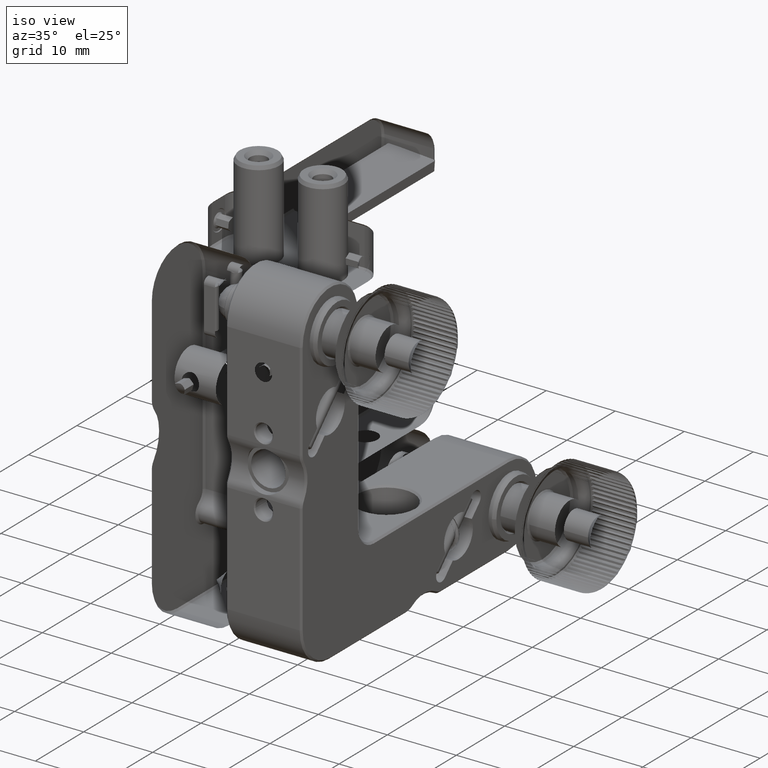
[diagram: clean part render]
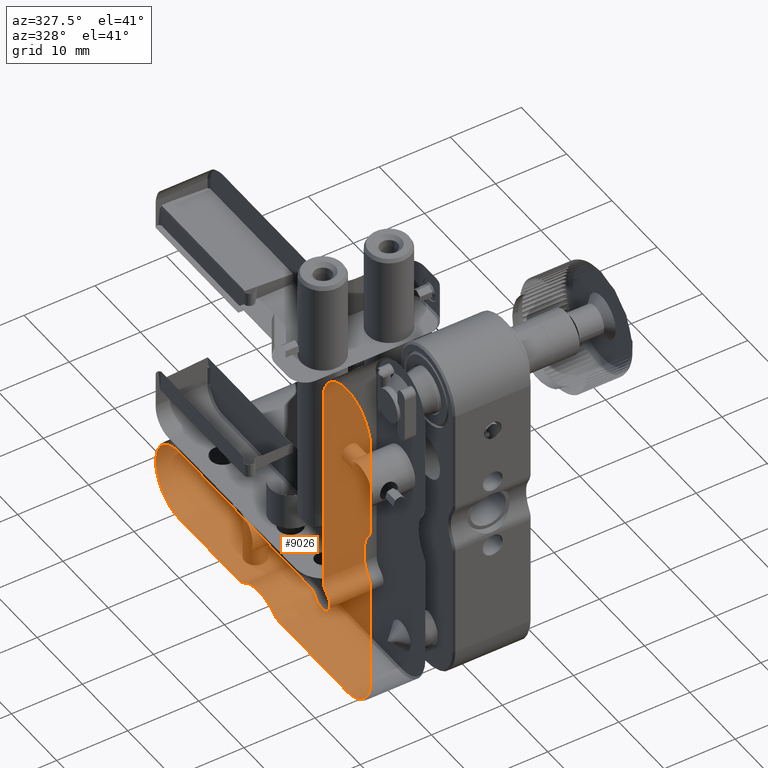
[diagram: tour spotlight — one face highlighted and labeled with its STEP entity id]
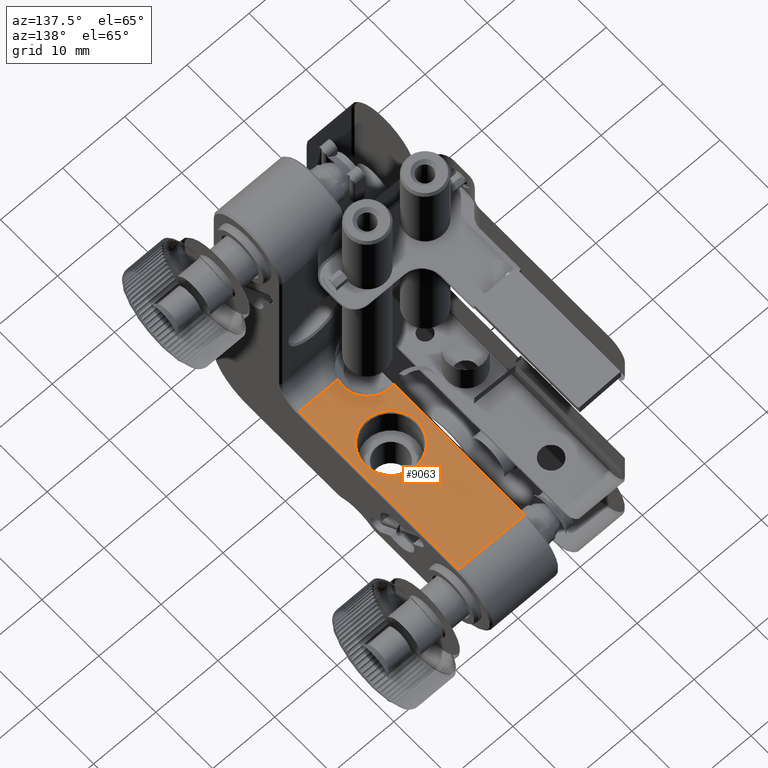
[diagram: tour spotlight — one face highlighted and labeled with its STEP entity id]
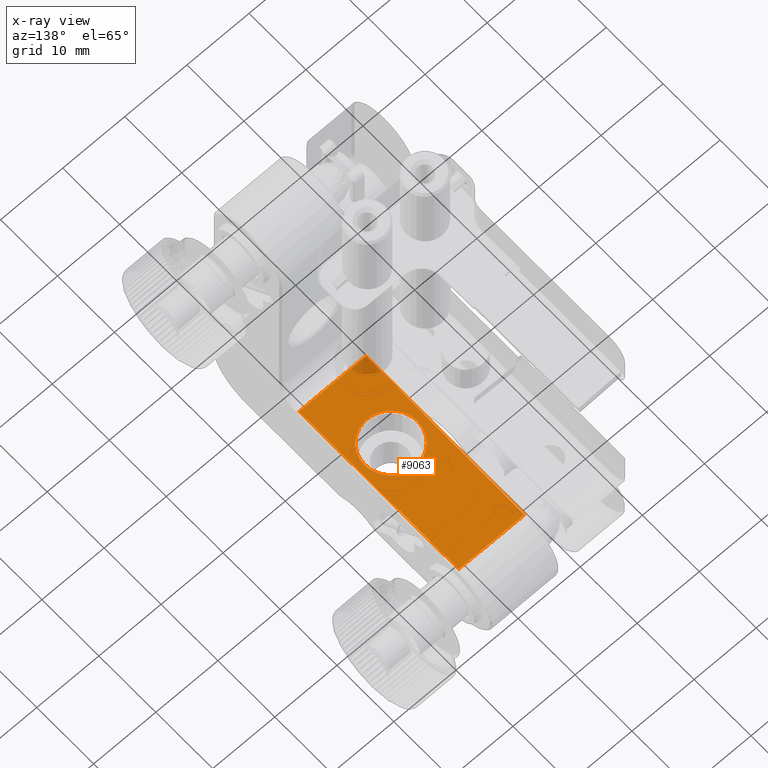
[diagram: x-ray of the same camera — body ghosted, this tour face saturated]
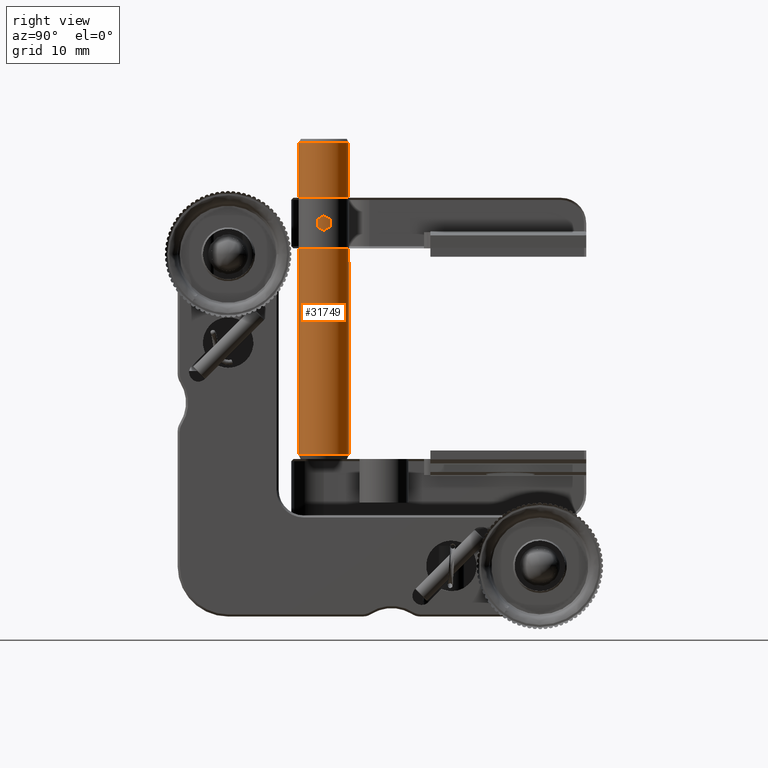
[diagram: tour spotlight — one face highlighted and labeled with its STEP entity id]
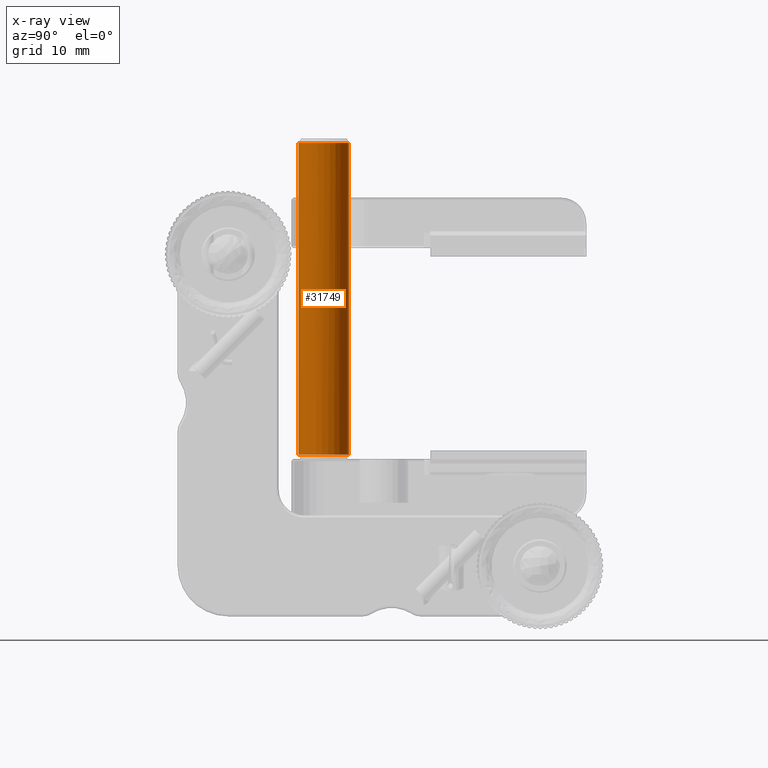
[diagram: x-ray of the same camera — body ghosted, this tour face saturated]
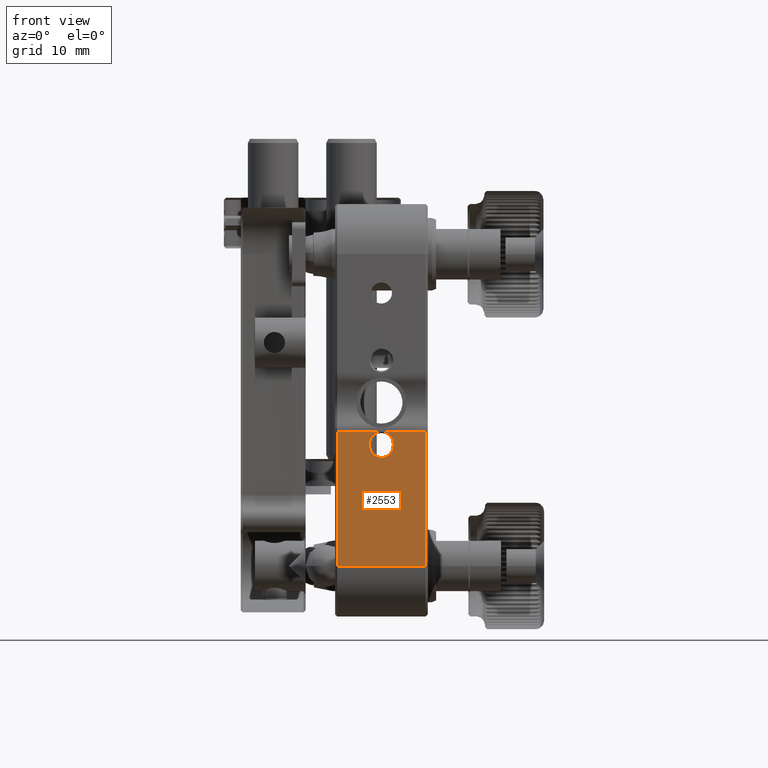
[diagram: tour spotlight — one face highlighted and labeled with its STEP entity id]
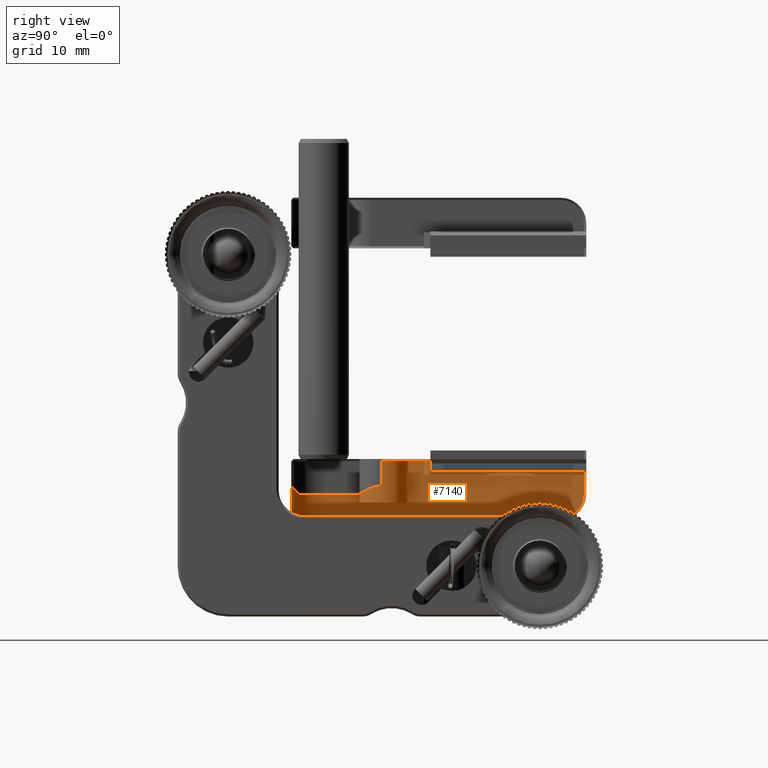
[diagram: tour spotlight — one face highlighted and labeled with its STEP entity id]
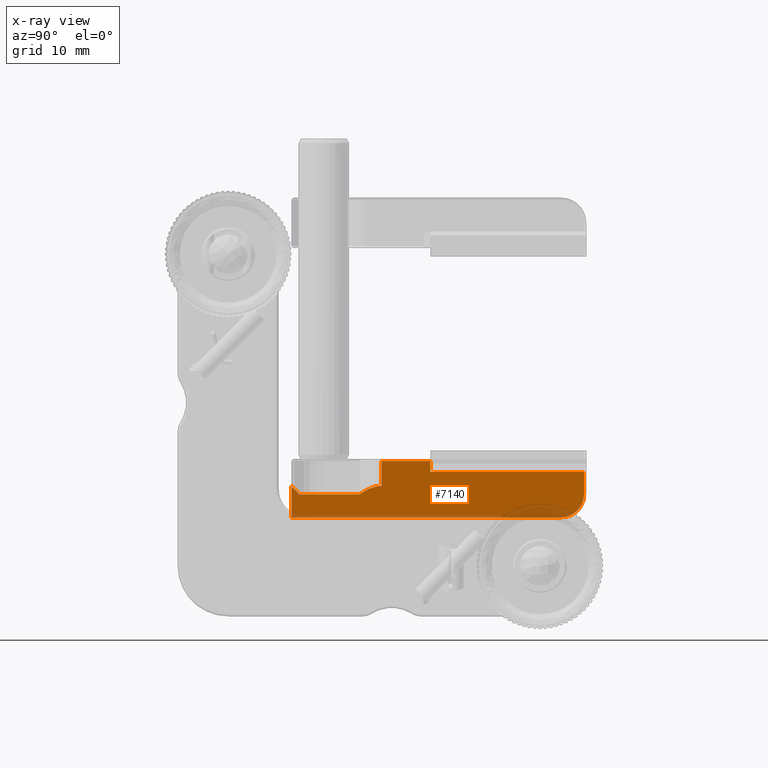
[diagram: x-ray of the same camera — body ghosted, this tour face saturated]
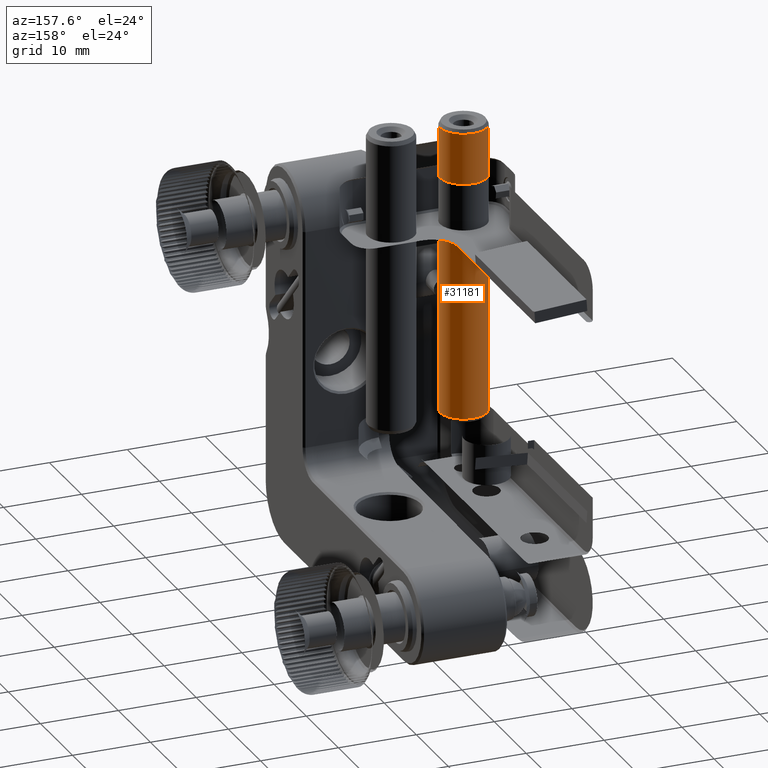
[diagram: tour spotlight — one face highlighted and labeled with its STEP entity id]
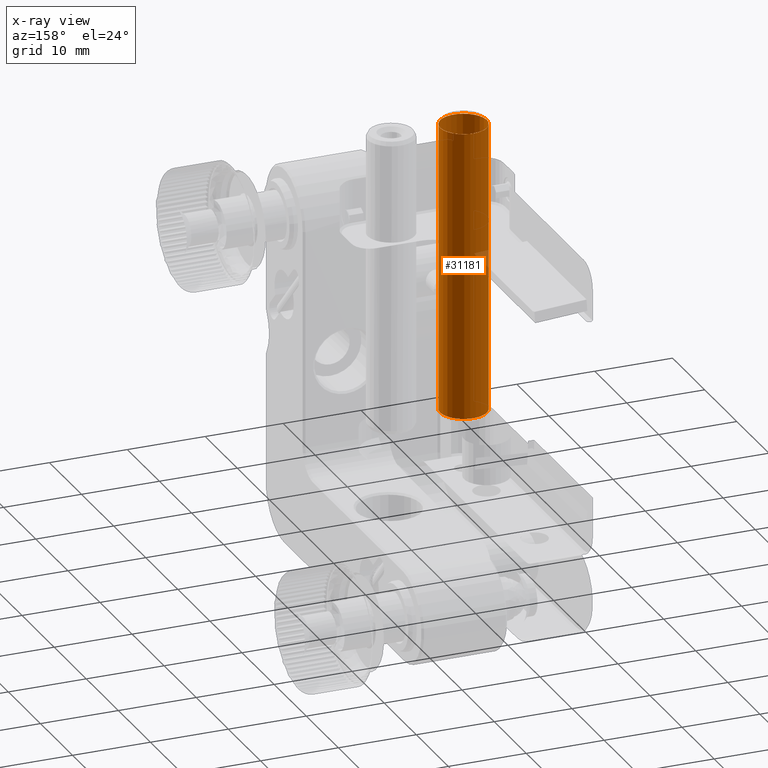
[diagram: x-ray of the same camera — body ghosted, this tour face saturated]
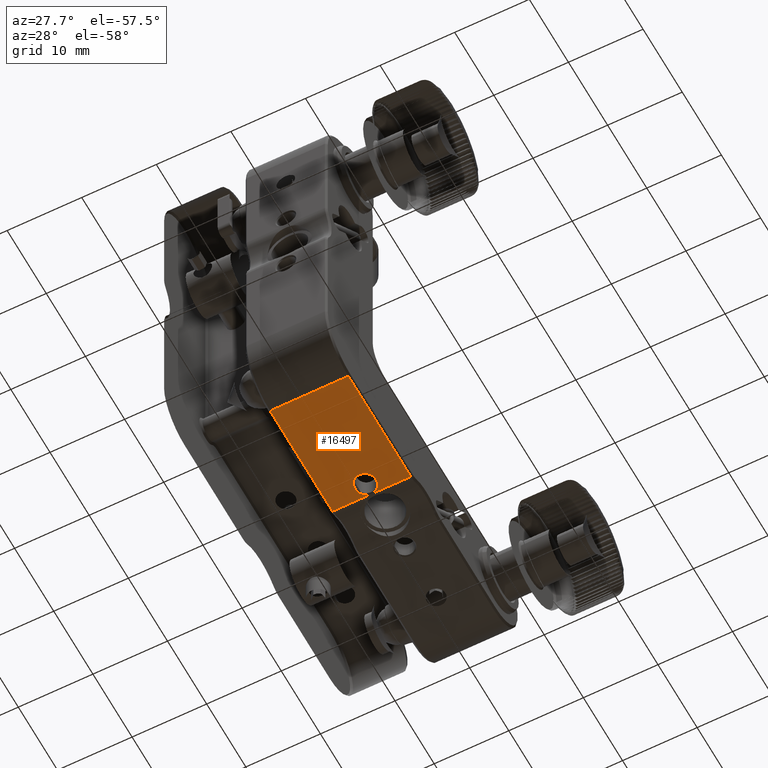
[diagram: tour spotlight — one face highlighted and labeled with its STEP entity id]
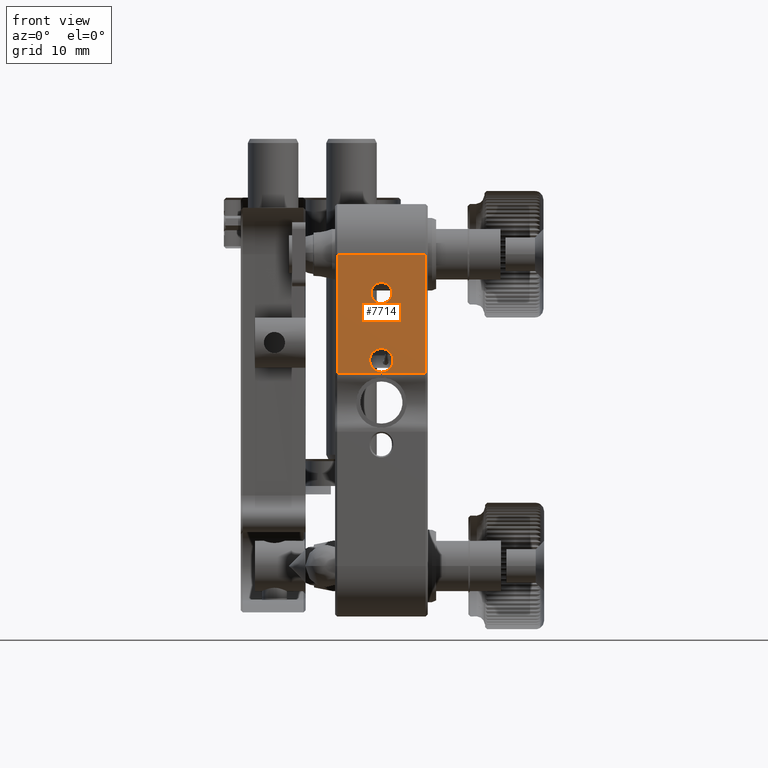
[diagram: tour spotlight — one face highlighted and labeled with its STEP entity id]
A machine part: a face-by-face anatomy tour. The part has 840 B-rep faces; the first image is the clean iso view, then the 8 largest visible faces are spotlighted one at a time (largest first), each with its STEP entity span.

Face 1 — auxiliary view, entity #9026. In plain terms, the highlighted planar face has unit normal (1, 0, 0).
Definition (entity closure, byte-faithful):
#123 = AXIS2_PLACEMENT_3D ( 'NONE', #7602, #15066, #7438 ) ;
#125 = DIRECTION ( 'NONE',  ( 1.000000000000000000, -1.734723475978671173E-15, 0.000000000000000000 ) ) ;
#151 = PLANE ( 'NONE',  #123 ) ;
#159 = DIRECTION ( 'NONE',  ( 1.000000000000000000, 8.673617380393991646E-16, 8.673617380393991646E-16 ) ) ;
#179 = EDGE_CURVE ( 'NONE', #30537, #5556, #25616, .T. ) ;
#278 = AXIS2_PLACEMENT_3D ( 'NONE', #440, #27062, #7581 ) ;
#440 = CARTESIAN_POINT ( 'NONE',  ( -26.44174326815118192, -40.93627596334386709, 49.90000000000006253 ) ) ;
#450 = VERTEX_POINT ( 'NONE', #15502 ) ;
#545 = CARTESIAN_POINT ( 'NONE',  ( -26.44174326823771537, -12.03627596334386141, 21.00000000000002487 ) ) ;
#601 = CARTESIAN_POINT ( 'NONE',  ( -26.44174326826487231, -27.93718185454956426, 38.87228132326902141 ) ) ;
#822 = LINE ( 'NONE', #18012, #6815 ) ;
#862 = DIRECTION ( 'NONE',  ( 5.551115123125776539E-17, 1.463706757734297880E-32, -1.000000000000000000 ) ) ;
#1066 = VECTOR ( 'NONE', #862, 1000.000000000000000 ) ;
#1502 = VERTEX_POINT ( 'NONE', #2186 ) ;
#1548 = VECTOR ( 'NONE', #11564, 1000.000000000000000 ) ;
#1610 = EDGE_CURVE ( 'NONE', #13920, #25594, #16612, .T. ) ;
#2186 = CARTESIAN_POINT ( 'NONE',  ( -26.44174326822382426, -36.68627596335966956, 45.40000000000007674 ) ) ;
#2371 = CIRCLE ( 'NONE', #278, 5.749999999903825376 ) ;
#2546 = DIRECTION ( 'NONE',  ( -2.636779683484747277E-16, 1.000000000000000000, 0.000000000000000000 ) ) ;
#2675 = DIRECTION ( 'NONE',  ( 6.033820785993879893E-16, -1.000000000000000000, 0.000000000000000000 ) ) ;
#3013 = ORIENTED_EDGE ( 'NONE', *, *, #15653, .T. ) ;
#3042 = EDGE_CURVE ( 'NONE', #450, #20145, #30221, .T. ) ;
#4049 = EDGE_CURVE ( 'NONE', #29407, #24033, #30533, .T. ) ;
#4443 = VECTOR ( 'NONE', #22753, 1000.000000000000000 ) ;
#4939 = DIRECTION ( 'NONE',  ( -1.000000000000000000, -3.016910393012519457E-16, -3.016910393012518470E-16 ) ) ;
#5400 = DIRECTION ( 'NONE',  ( 1.000000000000000000, 9.462128050688290352E-16, 0.000000000000000000 ) ) ;
#5406 = CARTESIAN_POINT ( 'NONE',  ( -26.44174326815404541, -16.53627596334386496, 27.00000000000002487 ) ) ;
#5518 = CARTESIAN_POINT ( 'NONE',  ( -26.44174326815687692, 5.563724036656152450, 35.75000000008278533 ) ) ;
#5556 = VERTEX_POINT ( 'NONE', #18519 ) ;
#5881 = LINE ( 'NONE', #10906, #4443 ) ;
#6097 = ORIENTED_EDGE ( 'NONE', *, *, #25370, .T. ) ;
#6103 = DIRECTION ( 'NONE',  ( -1.982541115379314164E-15, 1.000000000000000000, 0.000000000000000000 ) ) ;
#6225 = CARTESIAN_POINT ( 'NONE',  ( -26.44174326825855914, -36.68627596330992446, 54.40000000000005542 ) ) ;
#6437 = CARTESIAN_POINT ( 'NONE',  ( -26.44174326823645060, -26.18718185445657198, 38.87228132326902141 ) ) ;
#6815 = VECTOR ( 'NONE', #25320, 1000.000000000000000 ) ;
#7196 = ORIENTED_EDGE ( 'NONE', *, *, #18603, .T. ) ;
#7251 = CARTESIAN_POINT ( 'NONE',  ( -26.44174326820802889, -36.33627596331916010, 53.35000000001146958 ) ) ;
#7438 = DIRECTION ( 'NONE',  ( -2.636779683484747277E-16, 1.000000000000000000, 0.000000000000000000 ) ) ;
#7455 = ORIENTED_EDGE ( 'NONE', *, *, #23059, .T. ) ;
#7581 = DIRECTION ( 'NONE',  ( 6.033820786107207651E-16, -1.000000000000000000, 0.000000000000000000 ) ) ;
#7594 = CARTESIAN_POINT ( 'NONE',  ( -26.44174326828009569, -25.93718185454955005, 36.00000000000002842 ) ) ;
#7602 = CARTESIAN_POINT ( 'NONE',  ( -26.44174326823963384, 11.56372403665614179, 24.50000000000002842 ) ) ;
#7610 = CARTESIAN_POINT ( 'NONE',  ( -26.44174326820803245, -23.06490053128053574, 34.00000000000002132 ) ) ;
#7668 = DIRECTION ( 'NONE',  ( 0.000000000000000000, 0.000000000000000000, -1.000000000000000000 ) ) ;
#8582 = EDGE_CURVE ( 'NONE', #9516, #450, #822, .T. ) ;
#9014 = ORIENTED_EDGE ( 'NONE', *, *, #8582, .T. ) ;
#9021 = CARTESIAN_POINT ( 'NONE',  ( -26.44174326910489725, -36.68627596247858946, 67.50000000000002842 ) ) ;
#9026 = ADVANCED_FACE ( 'NONE', ( #27737 ), #151, .T. ) ;
#9209 = CARTESIAN_POINT ( 'NONE',  ( -26.44174326820528975, -26.18718185442418189, 67.50000007460354823 ) ) ;
#9516 = VERTEX_POINT ( 'NONE', #5518 ) ;
#9717 = EDGE_CURVE ( 'NONE', #20145, #14716, #17785, .T. ) ;
#10099 = VERTEX_POINT ( 'NONE', #13594 ) ;
#10145 = CARTESIAN_POINT ( 'NONE',  ( -26.44174326813538656, -15.48627596326089773, 25.59999999992729158 ) ) ;
#10188 = DIRECTION ( 'NONE',  ( -1.982541115297340078E-15, 0.000000000000000000, 1.000000000000000000 ) ) ;
#10192 = VERTEX_POINT ( 'NONE', #6437 ) ;
#10205 = DIRECTION ( 'NONE',  ( 0.000000000000000000, 0.000000000000000000, -1.000000000000000000 ) ) ;
#10262 = AXIS2_PLACEMENT_3D ( 'NONE', #27155, #5400, #17722 ) ;
#10311 = LINE ( 'NONE', #12280, #24339 ) ;
#10640 = ORIENTED_EDGE ( 'NONE', *, *, #28281, .T. ) ;
#10906 = CARTESIAN_POINT ( 'NONE',  ( -26.44174326823962318, -36.68627596334385288, 24.50000000000002842 ) ) ;
#10996 = CARTESIAN_POINT ( 'NONE',  ( -26.44174326823963384, 11.56372403665614179, 25.25000000000003197 ) ) ;
#11403 = DIRECTION ( 'NONE',  ( 1.000000000000000000, 9.462128050651785814E-16, 0.000000000000000000 ) ) ;
#11564 = DIRECTION ( 'NONE',  ( -5.551115123125776539E-17, -1.463706757734297880E-32, 1.000000000000000000 ) ) ;
#11973 = AXIS2_PLACEMENT_3D ( 'NONE', #545, #4939, #2675 ) ;
#12154 = DIRECTION ( 'NONE',  ( -1.000000000000000000, 9.912705576894888575E-16, -9.912705576894888575E-16 ) ) ;
#12185 = CIRCLE ( 'NONE', #27740, 5.250000000046385118 ) ;
#12230 = EDGE_CURVE ( 'NONE', #10192, #29407, #28796, .T. ) ;
#12280 = CARTESIAN_POINT ( 'NONE',  ( -26.44174326823963384, 11.56372403665614179, 25.25000000000001776 ) ) ;
#12335 = CARTESIAN_POINT ( 'NONE',  ( -26.44174326812990117, -31.43718185454955005, 67.50000007460356244 ) ) ;
#12462 = CIRCLE ( 'NONE', #30616, 1.750000000060716765 ) ;
#12554 = DIRECTION ( 'NONE',  ( 1.000000000000000000, 0.000000000000000000, 0.000000000000000000 ) ) ;
#12764 = EDGE_CURVE ( 'NONE', #25594, #26307, #24792, .T. ) ;
#13102 = DIRECTION ( 'NONE',  ( 6.608470384615163484E-16, 1.000000000000000000, 0.000000000000000000 ) ) ;
#13592 = ORIENTED_EDGE ( 'NONE', *, *, #18328, .T. ) ;
#13594 = CARTESIAN_POINT ( 'NONE',  ( -26.44174326823423726, 5.563724036656155114, 25.24999999994123456 ) ) ;
#13652 = AXIS2_PLACEMENT_3D ( 'NONE', #7594, #12154, #10188 ) ;
#13920 = VERTEX_POINT ( 'NONE', #10145 ) ;
#14109 = CIRCLE ( 'NONE', #20860, 1.749999999947029927 ) ;
#14289 = EDGE_CURVE ( 'NONE', #24033, #25497, #23216, .T. ) ;
#14571 = CARTESIAN_POINT ( 'NONE',  ( -26.44174326820802889, -36.33627596334663679, 46.45000000002347207 ) ) ;
#14716 = VERTEX_POINT ( 'NONE', #24337 ) ;
#15022 = ORIENTED_EDGE ( 'NONE', *, *, #31461, .T. ) ;
#15066 = DIRECTION ( 'NONE',  ( 1.000000000000000000, 2.636779683484747277E-16, 5.551115123125776539E-17 ) ) ;
#15308 = LINE ( 'NONE', #30261, #1066 ) ;
#15359 = VERTEX_POINT ( 'NONE', #6225 ) ;
#15438 = AXIS2_PLACEMENT_3D ( 'NONE', #5406, #12554, #7668 ) ;
#15502 = CARTESIAN_POINT ( 'NONE',  ( -26.44174326825856625, -23.06490053128053219, 35.75000000000956391 ) ) ;
#15653 = EDGE_CURVE ( 'NONE', #5556, #13920, #32064, .T. ) ;
#16003 = DIRECTION ( 'NONE',  ( 1.000000000000000000, 1.734723475816607194E-15, 0.000000000000000000 ) ) ;
#16177 = CARTESIAN_POINT ( 'NONE',  ( -26.44174326820661136, -7.536275963343870288, 25.24999999996699884 ) ) ;
#16501 = AXIS2_PLACEMENT_3D ( 'NONE', #32120, #125, #29842 ) ;
#16612 = CIRCLE ( 'NONE', #11973, 5.750000000011821655 ) ;
#17258 = DIRECTION ( 'NONE',  ( 0.000000000000000000, 0.000000000000000000, -1.000000000000000000 ) ) ;
#17316 = ORIENTED_EDGE ( 'NONE', *, *, #9717, .T. ) ;
#17722 = DIRECTION ( 'NONE',  ( -6.608470386886778193E-16, 1.000000000000000000, 0.000000000000000000 ) ) ;
#17785 = CIRCLE ( 'NONE', #13652, 1.750000000092441610 ) ;
#17925 = EDGE_CURVE ( 'NONE', #26307, #10099, #10311, .T. ) ;
#18012 = CARTESIAN_POINT ( 'NONE',  ( -26.44174326823963384, 11.56372403665614179, 35.75000000000002132 ) ) ;
#18328 = EDGE_CURVE ( 'NONE', #18646, #30537, #26431, .T. ) ;
#18519 = CARTESIAN_POINT ( 'NONE',  ( -26.44174326821735832, -16.53627596334386496, 25.24999999989986321 ) ) ;
#18603 = EDGE_CURVE ( 'NONE', #1502, #18646, #15308, .T. ) ;
#18646 = VERTEX_POINT ( 'NONE', #19008 ) ;
#18805 = CIRCLE ( 'NONE', #30248, 1.750000000020082602 ) ;
#18819 = ORIENTED_EDGE ( 'NONE', *, *, #1610, .T. ) ;
#19008 = CARTESIAN_POINT ( 'NONE',  ( -26.44174326822308529, -36.68627596333959673, 30.50000000000004263 ) ) ;
#19106 = AXIS2_PLACEMENT_3D ( 'NONE', #12335, #11403, #31237 ) ;
#19585 = DIRECTION ( 'NONE',  ( 1.000000000000000000, -0.000000000000000000, 0.000000000000000000 ) ) ;
#20009 = EDGE_CURVE ( 'NONE', #30542, #1502, #12462, .T. ) ;
#20145 = VERTEX_POINT ( 'NONE', #27780 ) ;
#20802 = CARTESIAN_POINT ( 'NONE',  ( -26.44174326823098653, -31.43627596334386354, 25.24999999999139888 ) ) ;
#20860 = AXIS2_PLACEMENT_3D ( 'NONE', #32118, #19585, #27053 ) ;
#20903 = DIRECTION ( 'NONE',  ( -2.636779683484747277E-16, 1.000000000000000000, 0.000000000000000000 ) ) ;
#21587 = ORIENTED_EDGE ( 'NONE', *, *, #4049, .T. ) ;
#22100 = DIRECTION ( 'NONE',  ( 0.000000000000000000, 0.000000000000000000, -1.000000000000000000 ) ) ;
#22350 = ORIENTED_EDGE ( 'NONE', *, *, #30831, .T. ) ;
#22612 = CARTESIAN_POINT ( 'NONE',  ( -26.44174326822234988, -31.43627596334386354, 30.50000000000004263 ) ) ;
#22753 = DIRECTION ( 'NONE',  ( 5.551115123125776539E-17, 1.463706757734297880E-32, -1.000000000000000000 ) ) ;
#23059 = EDGE_CURVE ( 'NONE', #15359, #28305, #14109, .T. ) ;
#23216 = CIRCLE ( 'NONE', #10262, 5.249999998241734467 ) ;
#23889 = CARTESIAN_POINT ( 'NONE',  ( -26.44174326823962673, -26.18718185454956782, 24.50000000000002842 ) ) ;
#24033 = VERTEX_POINT ( 'NONE', #31967 ) ;
#24106 = CARTESIAN_POINT ( 'NONE',  ( -26.44174326820565568, -8.586275963389294219, 25.59999999996787068 ) ) ;
#24337 = CARTESIAN_POINT ( 'NONE',  ( -26.44174326826868082, -26.93718185454330083, 37.43614066166144028 ) ) ;
#24339 = VECTOR ( 'NONE', #2546, 1000.000000000000000 ) ;
#24688 = CARTESIAN_POINT ( 'NONE',  ( -26.44174326820802889, -34.93627596334385288, 45.40000000000007674 ) ) ;
#24792 = CIRCLE ( 'NONE', #16501, 1.750000000038199222 ) ;
#25320 = DIRECTION ( 'NONE',  ( 2.636779683484747277E-16, -1.000000000000000000, -0.000000000000000000 ) ) ;
#25370 = EDGE_CURVE ( 'NONE', #14716, #10192, #18805, .T. ) ;
#25411 = ORIENTED_EDGE ( 'NONE', *, *, #3042, .T. ) ;
#25497 = VERTEX_POINT ( 'NONE', #9021 ) ;
#25547 = AXIS2_PLACEMENT_3D ( 'NONE', #7610, #159, #10205 ) ;
#25594 = VERTEX_POINT ( 'NONE', #24106 ) ;
#25616 = LINE ( 'NONE', #10996, #28216 ) ;
#25921 = DIRECTION ( 'NONE',  ( 1.000000000000000000, -6.308085367165162232E-16, 0.000000000000000000 ) ) ;
#26307 = VERTEX_POINT ( 'NONE', #16177 ) ;
#26431 = CIRCLE ( 'NONE', #30603, 5.249999999989540811 ) ;
#27023 = ORIENTED_EDGE ( 'NONE', *, *, #17925, .T. ) ;
#27053 = DIRECTION ( 'NONE',  ( 0.000000000000000000, 0.000000000000000000, -1.000000000000000000 ) ) ;
#27062 = DIRECTION ( 'NONE',  ( -1.000000000000000000, -6.033820786107207651E-16, -0.000000000000000000 ) ) ;
#27155 = CARTESIAN_POINT ( 'NONE',  ( -26.44174326997017488, -31.43627596334384933, 67.50000000000002842 ) ) ;
#27340 = ORIENTED_EDGE ( 'NONE', *, *, #12230, .T. ) ;
#27737 = FACE_OUTER_BOUND ( 'NONE', #30473, .T. ) ;
#27740 = AXIS2_PLACEMENT_3D ( 'NONE', #28206, #25921, #13102 ) ;
#27780 = CARTESIAN_POINT ( 'NONE',  ( -26.44174326826207988, -24.50104119288014459, 34.99999999997050537 ) ) ;
#28206 = CARTESIAN_POINT ( 'NONE',  ( -26.44174326818780330, 5.563724036656151561, 30.50000000000001421 ) ) ;
#28216 = VECTOR ( 'NONE', #20903, 1000.000000000000000 ) ;
#28281 = EDGE_CURVE ( 'NONE', #28305, #30542, #2371, .T. ) ;
#28305 = VERTEX_POINT ( 'NONE', #7251 ) ;
#28592 = ORIENTED_EDGE ( 'NONE', *, *, #179, .T. ) ;
#28654 = ORIENTED_EDGE ( 'NONE', *, *, #20009, .T. ) ;
#28796 = LINE ( 'NONE', #23889, #1548 ) ;
#29265 = DIRECTION ( 'NONE',  ( 1.000000000000000000, 8.673617380385912724E-16, 8.673617380385912724E-16 ) ) ;
#29317 = ORIENTED_EDGE ( 'NONE', *, *, #14289, .T. ) ;
#29407 = VERTEX_POINT ( 'NONE', #9209 ) ;
#29727 = ORIENTED_EDGE ( 'NONE', *, *, #12764, .T. ) ;
#29785 = DIRECTION ( 'NONE',  ( 1.000000000000000000, 3.154042683562769367E-16, 3.154042683562772325E-16 ) ) ;
#29842 = DIRECTION ( 'NONE',  ( 1.982541115358789976E-15, 1.000000000000000000, 0.000000000000000000 ) ) ;
#30221 = CIRCLE ( 'NONE', #25547, 1.750000000002006839 ) ;
#30248 = AXIS2_PLACEMENT_3D ( 'NONE', #601, #16003, #6103 ) ;
#30261 = CARTESIAN_POINT ( 'NONE',  ( -26.44174326823962318, -36.68627596334386709, 24.50000000000002842 ) ) ;
#30473 = EDGE_LOOP ( 'NONE', ( #27340, #21587, #29317, #15022, #7455, #10640, #28654, #7196, #13592, #28592, #3013, #18819, #29727, #27023, #22350, #9014, #25411, #17316, #6097 ) ) ;
#30533 = CIRCLE ( 'NONE', #19106, 5.250000000160071068 ) ;
#30537 = VERTEX_POINT ( 'NONE', #20802 ) ;
#30542 = VERTEX_POINT ( 'NONE', #14571 ) ;
#30603 = AXIS2_PLACEMENT_3D ( 'NONE', #22612, #29785, #17258 ) ;
#30616 = AXIS2_PLACEMENT_3D ( 'NONE', #24688, #29265, #22100 ) ;
#30831 = EDGE_CURVE ( 'NONE', #10099, #9516, #12185, .T. ) ;
#31237 = DIRECTION ( 'NONE',  ( -6.608470384472060171E-16, 1.000000000000000000, 0.000000000000000000 ) ) ;
#31461 = EDGE_CURVE ( 'NONE', #25497, #15359, #5881, .T. ) ;
#31967 = CARTESIAN_POINT ( 'NONE',  ( -26.44174326907623040, -31.43627927816887535, 72.74999999779328164 ) ) ;
#32064 = CIRCLE ( 'NONE', #15438, 1.750000000072304829 ) ;
#32118 = CARTESIAN_POINT ( 'NONE',  ( -26.44174326832171573, -34.93627596334385288, 54.40000000000005542 ) ) ;
#32120 = CARTESIAN_POINT ( 'NONE',  ( -26.44174326817359244, -7.536275963343868511, 27.00000000000001776 ) ) ;

Face 2 — auxiliary view, entity #9063. An x-ray twin of the same camera follows (body ghosted, this face saturated) — the face is partly hidden behind the body. In plain terms, the highlighted planar face has unit normal (0, 0, -1).
Definition (entity closure, byte-faithful):
#1890 = CARTESIAN_POINT ( 'NONE',  ( -15.24174326823963810, -22.43627596334387775, 36.50000000000000000 ) ) ;
#2092 = CARTESIAN_POINT ( 'NONE',  ( -15.24174326823963810, -22.43627596334387420, 36.50000000000000711 ) ) ;
#2357 = ORIENTED_EDGE ( 'NONE', *, *, #12061, .F. ) ;
#3320 = CARTESIAN_POINT ( 'NONE',  ( -9.741743268239636322, -12.03627596334386318, 36.50000000000040501 ) ) ;
#3598 = CARTESIAN_POINT ( 'NONE',  ( -15.24174326823963810, 11.56372403665613824, 36.50000000000000711 ) ) ;
#3813 = ORIENTED_EDGE ( 'NONE', *, *, #7817, .F. ) ;
#5121 = EDGE_CURVE ( 'NONE', #11630, #11630, #10955, .T. ) ;
#5292 = ORIENTED_EDGE ( 'NONE', *, *, #5121, .F. ) ;
#5548 = EDGE_CURVE ( 'NONE', #23696, #15154, #25834, .T. ) ;
#6302 = CARTESIAN_POINT ( 'NONE',  ( -4.491743268239636322, 11.56372403665613824, 36.50000000000000711 ) ) ;
#6469 = LINE ( 'NONE', #6302, #20351 ) ;
#6748 = CARTESIAN_POINT ( 'NONE',  ( -5.491743268283292068, -12.03627596334386318, 36.50000000000040501 ) ) ;
#7273 = EDGE_LOOP ( 'NONE', ( #5292 ) ) ;
#7817 = EDGE_CURVE ( 'NONE', #30391, #25743, #6469, .T. ) ;
#9063 = ADVANCED_FACE ( 'NONE', ( #14532, #14695 ), #16804, .F. ) ;
#10955 = CIRCLE ( 'NONE', #13550, 4.249999999956344254 ) ;
#11630 = VERTEX_POINT ( 'NONE', #6748 ) ;
#11891 = VECTOR ( 'NONE', #30590, 1000.000000000000000 ) ;
#12061 = EDGE_CURVE ( 'NONE', #23696, #30391, #20502, .T. ) ;
#12107 = DIRECTION ( 'NONE',  ( 1.000000000000000000, -0.000000000000000000, -0.000000000000000000 ) ) ;
#12705 = CARTESIAN_POINT ( 'NONE',  ( -4.491743268230756314, 5.563724036656135574, 36.49999999998317435 ) ) ;
#13550 = AXIS2_PLACEMENT_3D ( 'NONE', #3320, #28314, #16115 ) ;
#13753 = EDGE_CURVE ( 'NONE', #15154, #25743, #24422, .T. ) ;
#13785 = DIRECTION ( 'NONE',  ( -4.688441826964340600E-17, -1.000000000000000000, -4.688441826964351694E-17 ) ) ;
#14532 = FACE_OUTER_BOUND ( 'NONE', #22045, .T. ) ;
#14695 = FACE_BOUND ( 'NONE', #7273, .T. ) ;
#15154 = VERTEX_POINT ( 'NONE', #2092 ) ;
#16115 = DIRECTION ( 'NONE',  ( 1.000000000000000000, 0.000000000000000000, 0.000000000000000000 ) ) ;
#16804 = PLANE ( 'NONE',  #22951 ) ;
#19719 = DIRECTION ( 'NONE',  ( 0.000000000000000000, 9.376883653928683665E-17, -1.000000000000000000 ) ) ;
#20351 = VECTOR ( 'NONE', #13785, 1000.000000000000000 ) ;
#20502 = LINE ( 'NONE', #30419, #11891 ) ;
#20678 = CARTESIAN_POINT ( 'NONE',  ( -4.491743268292932356, -22.43627596334388130, 36.50000000002319211 ) ) ;
#22045 = EDGE_LOOP ( 'NONE', ( #31932, #31249, #3813, #2357 ) ) ;
#22072 = CARTESIAN_POINT ( 'NONE',  ( -15.11674326825471226, 5.563724036656140015, 36.37499999999629807 ) ) ;
#22951 = AXIS2_PLACEMENT_3D ( 'NONE', #27194, #19719, #24261 ) ;
#23387 = DIRECTION ( 'NONE',  ( 0.000000000000000000, -1.000000000000000000, -9.376883653928683665E-17 ) ) ;
#23696 = VERTEX_POINT ( 'NONE', #22072 ) ;
#24261 = DIRECTION ( 'NONE',  ( 0.000000000000000000, 1.000000000000000000, 9.376883653928683665E-17 ) ) ;
#24422 = LINE ( 'NONE', #1890, #25276 ) ;
#25276 = VECTOR ( 'NONE', #12107, 1000.000000000000000 ) ;
#25743 = VERTEX_POINT ( 'NONE', #20678 ) ;
#25834 = LINE ( 'NONE', #3598, #25973 ) ;
#25973 = VECTOR ( 'NONE', #23387, 1000.000000000000000 ) ;
#27194 = CARTESIAN_POINT ( 'NONE',  ( -15.24174326823963810, 11.56372403665613824, 36.50000000000000711 ) ) ;
#28314 = DIRECTION ( 'NONE',  ( 0.000000000000000000, -0.000000000000000000, 1.000000000000000000 ) ) ;
#30391 = VERTEX_POINT ( 'NONE', #12705 ) ;
#30419 = CARTESIAN_POINT ( 'NONE',  ( -15.24174326823963810, 5.563724036656139127, 36.50000000000000711 ) ) ;
#30590 = DIRECTION ( 'NONE',  ( 1.000000000000000000, -0.000000000000000000, 0.000000000000000000 ) ) ;
#31249 = ORIENTED_EDGE ( 'NONE', *, *, #13753, .T. ) ;
#31932 = ORIENTED_EDGE ( 'NONE', *, *, #5548, .T. ) ;

Face 3 — right view, entity #31749. An x-ray twin of the same camera follows (body ghosted, this face saturated) — the face is partly hidden behind the body. In plain terms, the highlighted cylindrical surface (bore or boss wall) has radius 3 mm, axis along (0, 0, -1).
Definition (entity closure, byte-faithful):
#256 = VERTEX_POINT ( 'NONE', #25077 ) ;
#2772 = FACE_OUTER_BOUND ( 'NONE', #12180, .T. ) ;
#4878 = CYLINDRICAL_SURFACE ( 'NONE', #26234, 3.000000000000002665 ) ;
#5859 = DIRECTION ( 'NONE',  ( -0.000000000000000000, -0.000000000000000000, 1.000000000000000000 ) ) ;
#7133 = CARTESIAN_POINT ( 'NONE',  ( -13.29174326823962637, -20.08718185454953087, 81.20000000000001705 ) ) ;
#7296 = FACE_OUTER_BOUND ( 'NONE', #21151, .T. ) ;
#7515 = EDGE_CURVE ( 'NONE', #256, #256, #13597, .T. ) ;
#7525 = ORIENTED_EDGE ( 'NONE', *, *, #25849, .T. ) ;
#7965 = CARTESIAN_POINT ( 'NONE',  ( -13.29174326823962637, -20.08718185454953087, 43.70000000000003126 ) ) ;
#12180 = EDGE_LOOP ( 'NONE', ( #7525 ) ) ;
#13597 = CIRCLE ( 'NONE', #21880, 3.000000000000002665 ) ;
#14665 = ORIENTED_EDGE ( 'NONE', *, *, #7515, .T. ) ;
#15611 = DIRECTION ( 'NONE',  ( 0.000000000000000000, 0.000000000000000000, -1.000000000000000000 ) ) ;
#16883 = DIRECTION ( 'NONE',  ( -1.000000000000000000, 0.000000000000000000, 0.000000000000000000 ) ) ;
#17724 = CARTESIAN_POINT ( 'NONE',  ( -13.29174326823962637, -20.08718185454953087, 80.70000000000000284 ) ) ;
#19354 = CIRCLE ( 'NONE', #26118, 3.000000000000002665 ) ;
#19518 = VERTEX_POINT ( 'NONE', #29440 ) ;
#21151 = EDGE_LOOP ( 'NONE', ( #14665 ) ) ;
#21880 = AXIS2_PLACEMENT_3D ( 'NONE', #17724, #15611, #27800 ) ;
#22240 = DIRECTION ( 'NONE',  ( 0.000000000000000000, 0.000000000000000000, -1.000000000000000000 ) ) ;
#25077 = CARTESIAN_POINT ( 'NONE',  ( -16.29174326823962815, -20.08718185454953087, 80.70000000000000284 ) ) ;
#25849 = EDGE_CURVE ( 'NONE', #19518, #19518, #19354, .T. ) ;
#26118 = AXIS2_PLACEMENT_3D ( 'NONE', #7965, #5859, #27776 ) ;
#26234 = AXIS2_PLACEMENT_3D ( 'NONE', #7133, #22240, #16883 ) ;
#27776 = DIRECTION ( 'NONE',  ( -1.000000000000000000, 0.000000000000000000, 0.000000000000000000 ) ) ;
#27800 = DIRECTION ( 'NONE',  ( -1.000000000000000000, 0.000000000000000000, 0.000000000000000000 ) ) ;
#29440 = CARTESIAN_POINT ( 'NONE',  ( -16.29174326823962815, -20.08718185454953087, 43.70000000000003126 ) ) ;
#31749 = ADVANCED_FACE ( 'NONE', ( #2772, #7296 ), #4878, .T. ) ;

Face 4 — front view, entity #2553. In plain terms, the highlighted planar face has unit normal (0, 1, 0).
Definition (entity closure, byte-faithful):
#206 = EDGE_CURVE ( 'NONE', #2337, #30672, #11157, .T. ) ;
#444 = AXIS2_PLACEMENT_3D ( 'NONE', #17314, #2565, #22348 ) ;
#571 = DIRECTION ( 'NONE',  ( 0.000000000000000000, -0.000000000000000000, 1.000000000000000000 ) ) ;
#950 = VECTOR ( 'NONE', #24381, 1000.000000000000000 ) ;
#1056 = DIRECTION ( 'NONE',  ( 0.000000000000000000, -1.000000000000000000, 0.000000000000000000 ) ) ;
#1858 = VERTEX_POINT ( 'NONE', #22265 ) ;
#1926 = EDGE_LOOP ( 'NONE', ( #12163, #6447, #2693, #7404 ) ) ;
#2337 = VERTEX_POINT ( 'NONE', #6456 ) ;
#2553 = ADVANCED_FACE ( 'NONE', ( #6075, #26323 ), #23876, .F. ) ;
#2565 = DIRECTION ( 'NONE',  ( 0.000000000000000000, -1.000000000000000000, 0.000000000000000000 ) ) ;
#2693 = ORIENTED_EDGE ( 'NONE', *, *, #206, .F. ) ;
#3537 = EDGE_CURVE ( 'NONE', #1858, #20436, #26348, .T. ) ;
#3561 = VECTOR ( 'NONE', #4827, 1000.000000000000000 ) ;
#3640 = ORIENTED_EDGE ( 'NONE', *, *, #14155, .F. ) ;
#4655 = DIRECTION ( 'NONE',  ( 0.000000000000000000, -0.000000000000000000, -1.000000000000000000 ) ) ;
#4827 = DIRECTION ( 'NONE',  ( 1.000000000000000000, 0.000000000000000000, -0.000000000000000000 ) ) ;
#6021 = VERTEX_POINT ( 'NONE', #29327 ) ;
#6075 = FACE_OUTER_BOUND ( 'NONE', #1926, .T. ) ;
#6447 = ORIENTED_EDGE ( 'NONE', *, *, #21486, .F. ) ;
#6456 = CARTESIAN_POINT ( 'NONE',  ( -4.491743268239636322, -37.43627596334386709, 46.43589838486226284 ) ) ;
#6674 = EDGE_CURVE ( 'NONE', #16936, #6021, #24335, .T. ) ;
#6885 = VECTOR ( 'NONE', #16559, 1000.000000000000000 ) ;
#6942 = VECTOR ( 'NONE', #4655, 1000.000000000000000 ) ;
#7404 = ORIENTED_EDGE ( 'NONE', *, *, #12737, .F. ) ;
#8630 = VERTEX_POINT ( 'NONE', #15103 ) ;
#8697 = VECTOR ( 'NONE', #16233, 1000.000000000000000 ) ;
#9097 = CARTESIAN_POINT ( 'NONE',  ( -14.99174326823963632, -37.43627596334385998, 73.50000000000001421 ) ) ;
#11157 = LINE ( 'NONE', #14384, #6942 ) ;
#12163 = ORIENTED_EDGE ( 'NONE', *, *, #6674, .F. ) ;
#12456 = LINE ( 'NONE', #27378, #3561 ) ;
#12737 = EDGE_CURVE ( 'NONE', #6021, #2337, #12456, .T. ) ;
#14155 = EDGE_CURVE ( 'NONE', #8630, #21033, #16493, .T. ) ;
#14351 = DIRECTION ( 'NONE',  ( -1.000000000000000000, -0.000000000000000000, 0.000000000000000000 ) ) ;
#14384 = CARTESIAN_POINT ( 'NONE',  ( -4.491743268239636322, -37.43627596334385998, 49.00000000000001421 ) ) ;
#15103 = CARTESIAN_POINT ( 'NONE',  ( -11.14174326820603333, -37.43627596332999019, 44.77500000000001279 ) ) ;
#15557 = EDGE_CURVE ( 'NONE', #20436, #8630, #17252, .T. ) ;
#15816 = DIRECTION ( 'NONE',  ( 0.000000000000000000, 1.000000000000000000, 0.000000000000000000 ) ) ;
#16233 = DIRECTION ( 'NONE',  ( 0.000000000000000000, -0.000000000000000000, 1.000000000000000000 ) ) ;
#16493 = CIRCLE ( 'NONE', #28428, 1.399999999917252103 ) ;
#16559 = DIRECTION ( 'NONE',  ( 0.000000000000000000, -0.000000000000000000, 1.000000000000000000 ) ) ;
#16607 = CARTESIAN_POINT ( 'NONE',  ( -11.14174326823270533, -37.43627596333693219, 45.02500000000001279 ) ) ;
#16623 = LINE ( 'NONE', #26535, #16633 ) ;
#16633 = VECTOR ( 'NONE', #14351, 1000.000000000000000 ) ;
#16868 = CARTESIAN_POINT ( 'NONE',  ( -8.341743268239630638, -37.43627596334385998, 73.50000000000001421 ) ) ;
#16936 = VERTEX_POINT ( 'NONE', #29015 ) ;
#17252 = LINE ( 'NONE', #19039, #950 ) ;
#17314 = CARTESIAN_POINT ( 'NONE',  ( -9.741743268239636322, -37.43627596332999019, 45.02500000000001990 ) ) ;
#19002 = CARTESIAN_POINT ( 'NONE',  ( -4.241743268239636322, -37.43627596334385998, 73.50000000000001421 ) ) ;
#19039 = CARTESIAN_POINT ( 'NONE',  ( -11.14174326823964201, -37.43627596334385998, 73.50000000000001421 ) ) ;
#20436 = VERTEX_POINT ( 'NONE', #16607 ) ;
#20852 = DIRECTION ( 'NONE',  ( 0.000000000000000000, 0.000000000000000000, -1.000000000000000000 ) ) ;
#21033 = VERTEX_POINT ( 'NONE', #30873 ) ;
#21486 = EDGE_CURVE ( 'NONE', #30672, #16936, #16623, .T. ) ;
#22265 = CARTESIAN_POINT ( 'NONE',  ( -8.341743268246565535, -37.43627596333693219, 45.02500000000001279 ) ) ;
#22348 = DIRECTION ( 'NONE',  ( 0.000000000000000000, 0.000000000000000000, -1.000000000000000000 ) ) ;
#23523 = EDGE_CURVE ( 'NONE', #21033, #1858, #28588, .T. ) ;
#23760 = EDGE_LOOP ( 'NONE', ( #3640, #31520, #24247, #26435 ) ) ;
#23876 = PLANE ( 'NONE',  #26068 ) ;
#24247 = ORIENTED_EDGE ( 'NONE', *, *, #3537, .F. ) ;
#24335 = LINE ( 'NONE', #9097, #6885 ) ;
#24381 = DIRECTION ( 'NONE',  ( -0.000000000000000000, 0.000000000000000000, -1.000000000000000000 ) ) ;
#26068 = AXIS2_PLACEMENT_3D ( 'NONE', #19002, #15816, #571 ) ;
#26323 = FACE_BOUND ( 'NONE', #23760, .T. ) ;
#26348 = CIRCLE ( 'NONE', #444, 1.399999999923171146 ) ;
#26435 = ORIENTED_EDGE ( 'NONE', *, *, #23523, .F. ) ;
#26535 = CARTESIAN_POINT ( 'NONE',  ( -4.241743268239636322, -37.43627596334385998, 30.50000000000001421 ) ) ;
#27378 = CARTESIAN_POINT ( 'NONE',  ( -4.241743268239636322, -37.43627596334385998, 46.43589838486226284 ) ) ;
#27720 = CARTESIAN_POINT ( 'NONE',  ( -4.491743268259178024, -37.43627596334124519, 30.50000000000000355 ) ) ;
#28428 = AXIS2_PLACEMENT_3D ( 'NONE', #30929, #1056, #20852 ) ;
#28588 = LINE ( 'NONE', #16868, #8697 ) ;
#29015 = CARTESIAN_POINT ( 'NONE',  ( -14.99174326825394843, -37.43627596334039254, 30.50000000000001421 ) ) ;
#29327 = CARTESIAN_POINT ( 'NONE',  ( -14.99174326823973757, -37.43627596334758323, 46.43589838486225574 ) ) ;
#30672 = VERTEX_POINT ( 'NONE', #27720 ) ;
#30873 = CARTESIAN_POINT ( 'NONE',  ( -8.341743268246565535, -37.43627596333693219, 44.77500000000000568 ) ) ;
#30929 = CARTESIAN_POINT ( 'NONE',  ( -9.741743268239636322, -37.43627596332999019, 44.77500000000001279 ) ) ;
#31520 = ORIENTED_EDGE ( 'NONE', *, *, #15557, .F. ) ;

Face 5 — right view, entity #7140. An x-ray twin of the same camera follows (body ghosted, this face saturated) — the face is partly hidden behind the body. In plain terms, the highlighted planar face has unit normal (-1, -0, -0).
Definition (entity closure, byte-faithful):
#510 = LINE ( 'NONE', #2946, #6297 ) ;
#640 = CARTESIAN_POINT ( 'NONE',  ( -18.74174326823963810, -7.437181854549537618, 41.65802527715079862 ) ) ;
#1236 = CIRCLE ( 'NONE', #10554, 2.750000000048657967 ) ;
#1893 = EDGE_CURVE ( 'NONE', #4312, #19576, #17060, .T. ) ;
#2034 = CARTESIAN_POINT ( 'NONE',  ( -18.74174326823963099, -13.23718185454953655, 40.00000000002295764 ) ) ;
#2391 = ORIENTED_EDGE ( 'NONE', *, *, #28709, .T. ) ;
#2444 = DIRECTION ( 'NONE',  ( -2.909917014988534922E-17, -1.000000000000000000, 4.161375206607799166E-16 ) ) ;
#2449 = ORIENTED_EDGE ( 'NONE', *, *, #9690, .T. ) ;
#2946 = CARTESIAN_POINT ( 'NONE',  ( -18.74174326823962389, -23.93718185454953229, 40.00000000000002842 ) ) ;
#3188 = CARTESIAN_POINT ( 'NONE',  ( -18.74174326823963099, -7.437181854549537618, 36.00000000000002842 ) ) ;
#3703 = ORIENTED_EDGE ( 'NONE', *, *, #21319, .T. ) ;
#3725 = CARTESIAN_POINT ( 'NONE',  ( -18.74174326823963099, -14.41279232898941842, 39.78404840733436743 ) ) ;
#4041 = VECTOR ( 'NONE', #19930, 1000.000000000000000 ) ;
#4312 = VERTEX_POINT ( 'NONE', #21085 ) ;
#4545 = CARTESIAN_POINT ( 'NONE',  ( -18.74174326826833692, 10.81281814547479314, 39.00000000000000711 ) ) ;
#4736 = DIRECTION ( 'NONE',  ( -3.682664409524183127E-16, 1.000000000000000000, -3.682664409524184113E-16 ) ) ;
#5124 = PLANE ( 'NONE',  #17726 ) ;
#5806 = DIRECTION ( 'NONE',  ( -1.000000000000000000, -1.156482317302655781E-15, -0.000000000000000000 ) ) ;
#6129 = CARTESIAN_POINT ( 'NONE',  ( -18.74174326823963099, -7.437181854549533178, 42.95000000000002416 ) ) ;
#6259 = VECTOR ( 'NONE', #4736, 1000.000000000000000 ) ;
#6297 = VECTOR ( 'NONE', #30878, 1000.000000000000000 ) ;
#6422 = EDGE_CURVE ( 'NONE', #22339, #31289, #18411, .T. ) ;
#7097 = LINE ( 'NONE', #15222, #4041 ) ;
#7140 = ADVANCED_FACE ( 'NONE', ( #22164 ), #5124, .T. ) ;
#7221 = DIRECTION ( 'NONE',  ( 2.892476652984039853E-16, -1.000000000000000000, 0.000000000000000000 ) ) ;
#7512 = CARTESIAN_POINT ( 'NONE',  ( -18.74174326823962389, -23.93718185454953584, 40.00000000000002842 ) ) ;
#7597 = EDGE_CURVE ( 'NONE', #11903, #31853, #8476, .T. ) ;
#7609 = LINE ( 'NONE', #3188, #30151 ) ;
#8474 = VECTOR ( 'NONE', #2444, 1000.000000000000000 ) ;
#8476 = LINE ( 'NONE', #28780, #14626 ) ;
#8739 = VERTEX_POINT ( 'NONE', #21101 ) ;
#8776 = CARTESIAN_POINT ( 'NONE',  ( -18.74174326823962744, -16.23718185454954366, 39.00000000000002132 ) ) ;
#9690 = EDGE_CURVE ( 'NONE', #8739, #13274, #26378, .T. ) ;
#9843 = CARTESIAN_POINT ( 'NONE',  ( -18.74174326823962389, -22.93718185454953584, 39.00000000000002132 ) ) ;
#10554 = AXIS2_PLACEMENT_3D ( 'NONE', #12193, #5806, #13276 ) ;
#11191 = CARTESIAN_POINT ( 'NONE',  ( -18.74174326823963099, -13.23718185454953655, 40.00000000002295764 ) ) ;
#11505 = CARTESIAN_POINT ( 'NONE',  ( -18.74174326823383652, -15.48329295333149958, 39.26433715394335877 ) ) ;
#11584 = CARTESIAN_POINT ( 'NONE',  ( -18.74174326823964165, 10.81281814545047837, 41.65802527715079151 ) ) ;
#11640 = ORIENTED_EDGE ( 'NONE', *, *, #7597, .F. ) ;
#11903 = VERTEX_POINT ( 'NONE', #27172 ) ;
#12193 = CARTESIAN_POINT ( 'NONE',  ( -18.74174326826833337, 8.062818145450464158, 39.00000000000000711 ) ) ;
#12974 = LINE ( 'NONE', #640, #8474 ) ;
#13274 = VERTEX_POINT ( 'NONE', #2034 ) ;
#13276 = DIRECTION ( 'NONE',  ( 1.261617073415355060E-15, -1.000000000000000000, 0.000000000000000000 ) ) ;
#13334 = LINE ( 'NONE', #8776, #25552 ) ;
#13405 = DIRECTION ( 'NONE',  ( -0.000000000000000000, -4.472852166064327881E-16, -1.000000000000000000 ) ) ;
#14626 = VECTOR ( 'NONE', #23238, 1000.000000000000000 ) ;
#14954 = CARTESIAN_POINT ( 'NONE',  ( -18.74174326823962744, -16.23718185454954011, 42.95000000000003126 ) ) ;
#15222 = CARTESIAN_POINT ( 'NONE',  ( -18.74174326823962744, -13.23718185454953300, 36.00000000000002842 ) ) ;
#15232 = EDGE_CURVE ( 'NONE', #13274, #4312, #7097, .T. ) ;
#16228 = VECTOR ( 'NONE', #23432, 1000.000000000000000 ) ;
#16684 = CARTESIAN_POINT ( 'NONE',  ( -18.74174326823963099, -13.47911056741447666, 40.00000000004578737 ) ) ;
#17060 = LINE ( 'NONE', #14954, #6259 ) ;
#17269 = VERTEX_POINT ( 'NONE', #7512 ) ;
#17726 = AXIS2_PLACEMENT_3D ( 'NONE', #21679, #29172, #7221 ) ;
#18411 = LINE ( 'NONE', #18561, #16228 ) ;
#18561 = CARTESIAN_POINT ( 'NONE',  ( -18.74174326823963455, 10.81281814545046593, 43.20000000000000995 ) ) ;
#18674 = LINE ( 'NONE', #28111, #30899 ) ;
#18840 = DIRECTION ( 'NONE',  ( -2.892476652984039853E-16, 1.000000000000000000, -0.000000000000000000 ) ) ;
#19576 = VERTEX_POINT ( 'NONE', #6129 ) ;
#19930 = DIRECTION ( 'NONE',  ( -2.209535476846894693E-16, -6.391029780719600518E-32, 1.000000000000000000 ) ) ;
#20444 = CARTESIAN_POINT ( 'NONE',  ( -18.74174326826833337, 8.062818145450464158, 36.24999999997569233 ) ) ;
#20962 = EDGE_LOOP ( 'NONE', ( #3703, #31088, #25754, #30039, #11640, #2391, #21362, #23051, #2449, #26596, #21417 ) ) ;
#21085 = CARTESIAN_POINT ( 'NONE',  ( -18.74174326824043391, -13.23718185454953300, 42.95000000000474927 ) ) ;
#21101 = CARTESIAN_POINT ( 'NONE',  ( -18.74174326823962744, -15.88293316562359259, 39.00000000003962697 ) ) ;
#21319 = EDGE_CURVE ( 'NONE', #19576, #27506, #7609, .T. ) ;
#21362 = ORIENTED_EDGE ( 'NONE', *, *, #22004, .T. ) ;
#21417 = ORIENTED_EDGE ( 'NONE', *, *, #1893, .T. ) ;
#21568 = CARTESIAN_POINT ( 'NONE',  ( -18.74174326823962744, -15.88293316562359259, 39.00000000003962697 ) ) ;
#21679 = CARTESIAN_POINT ( 'NONE',  ( -18.74174326823962744, -16.23718185454954366, 36.00000000000002842 ) ) ;
#22004 = EDGE_CURVE ( 'NONE', #17269, #23107, #510, .T. ) ;
#22164 = FACE_OUTER_BOUND ( 'NONE', #20962, .T. ) ;
#22339 = VERTEX_POINT ( 'NONE', #4545 ) ;
#23051 = ORIENTED_EDGE ( 'NONE', *, *, #25149, .T. ) ;
#23107 = VERTEX_POINT ( 'NONE', #9843 ) ;
#23238 = DIRECTION ( 'NONE',  ( 7.901877565401437677E-17, 1.000000000000000000, -7.901877565401432747E-17 ) ) ;
#23432 = DIRECTION ( 'NONE',  ( 1.131658344608702789E-16, 1.131658344608688491E-16, 1.000000000000000000 ) ) ;
#23521 = CARTESIAN_POINT ( 'NONE',  ( -18.74174326823962744, -13.71636766545704411, 39.97046957988241189 ) ) ;
#25149 = EDGE_CURVE ( 'NONE', #23107, #8739, #13334, .T. ) ;
#25552 = VECTOR ( 'NONE', #18840, 1000.000000000000000 ) ;
#25754 = ORIENTED_EDGE ( 'NONE', *, *, #6422, .F. ) ;
#25993 = DIRECTION ( 'NONE',  ( -2.209535476846894693E-16, -6.391029780719600518E-32, 1.000000000000000000 ) ) ;
#26159 = EDGE_CURVE ( 'NONE', #22339, #31853, #1236, .T. ) ;
#26378 = B_SPLINE_CURVE_WITH_KNOTS ( 'NONE', 3,
 ( #21568, #11505, #31496, #3725, #29051, #23521, #16684, #11191 ),
 .UNSPECIFIED., .F., .F.,
 ( 4, 2, 2, 4 ),
 ( 7.699049097883890586E-15, 0.001427793588437628819, 0.002141690382652591384, 0.002855587176867554165 ),
 .UNSPECIFIED. ) ;
#26596 = ORIENTED_EDGE ( 'NONE', *, *, #15232, .T. ) ;
#27172 = CARTESIAN_POINT ( 'NONE',  ( -18.74174326823962033, -23.93718185454953584, 36.25000000000003553 ) ) ;
#27506 = VERTEX_POINT ( 'NONE', #30351 ) ;
#28111 = CARTESIAN_POINT ( 'NONE',  ( -18.74174326823962389, -23.93718185454953584, 36.00000000000002842 ) ) ;
#28709 = EDGE_CURVE ( 'NONE', #11903, #17269, #18674, .T. ) ;
#28780 = CARTESIAN_POINT ( 'NONE',  ( -18.74174326823962033, -6.437181854549536730, 36.25000000000003553 ) ) ;
#29051 = CARTESIAN_POINT ( 'NONE',  ( -18.74174326823963099, -14.18315970246475111, 39.86259508291021803 ) ) ;
#29076 = EDGE_CURVE ( 'NONE', #31289, #27506, #12974, .T. ) ;
#29172 = DIRECTION ( 'NONE',  ( -1.000000000000000000, -2.892476652984039853E-16, -2.209535476846894693E-16 ) ) ;
#30039 = ORIENTED_EDGE ( 'NONE', *, *, #26159, .T. ) ;
#30151 = VECTOR ( 'NONE', #13405, 1000.000000000000000 ) ;
#30351 = CARTESIAN_POINT ( 'NONE',  ( -18.74174326823963455, -7.437181854549534066, 41.65802527715079151 ) ) ;
#30878 = DIRECTION ( 'NONE',  ( 0.000000000000000000, 0.7071067811865439090, -0.7071067811865512365 ) ) ;
#30899 = VECTOR ( 'NONE', #25993, 1000.000000000000000 ) ;
#31088 = ORIENTED_EDGE ( 'NONE', *, *, #29076, .F. ) ;
#31289 = VERTEX_POINT ( 'NONE', #11584 ) ;
#31496 = CARTESIAN_POINT ( 'NONE',  ( -18.74174326823962389, -15.07216287453109338, 39.50596308268276147 ) ) ;
#31853 = VERTEX_POINT ( 'NONE', #20444 ) ;

Face 6 — auxiliary view, entity #31181. An x-ray twin of the same camera follows (body ghosted, this face saturated) — the face is partly hidden behind the body. In plain terms, the highlighted cylindrical surface (bore or boss wall) has radius 3 mm, axis along (-0, -0, -1).
Definition (entity closure, byte-faithful):
#2838 = EDGE_CURVE ( 'NONE', #7383, #7383, #4815, .T. ) ;
#3901 = DIRECTION ( 'NONE',  ( -0.000000000000000000, -0.000000000000000000, -1.000000000000000000 ) ) ;
#4755 = VERTEX_POINT ( 'NONE', #26516 ) ;
#4815 = CIRCLE ( 'NONE', #27101, 2.999999999999999112 ) ;
#5287 = AXIS2_PLACEMENT_3D ( 'NONE', #21108, #3901, #8920 ) ;
#6067 = DIRECTION ( 'NONE',  ( -0.000000000000000000, -0.000000000000000000, -1.000000000000000000 ) ) ;
#6220 = DIRECTION ( 'NONE',  ( -1.000000000000000000, 0.000000000000000000, 0.000000000000000000 ) ) ;
#7383 = VERTEX_POINT ( 'NONE', #21530 ) ;
#7589 = ORIENTED_EDGE ( 'NONE', *, *, #2838, .T. ) ;
#8920 = DIRECTION ( 'NONE',  ( -1.000000000000000000, 0.000000000000000000, 0.000000000000000000 ) ) ;
#9718 = CARTESIAN_POINT ( 'NONE',  ( -22.59174326823962886, -20.08718185454953797, 43.70000000000003126 ) ) ;
#10946 = FACE_OUTER_BOUND ( 'NONE', #26389, .T. ) ;
#11104 = CARTESIAN_POINT ( 'NONE',  ( -22.59174326823962886, -20.08718185454953797, 81.20000000000001705 ) ) ;
#18255 = CYLINDRICAL_SURFACE ( 'NONE', #30365, 2.999999999999999112 ) ;
#21108 = CARTESIAN_POINT ( 'NONE',  ( -22.59174326823962886, -20.08718185454953797, 80.70000000000000284 ) ) ;
#21530 = CARTESIAN_POINT ( 'NONE',  ( -25.59174326823962886, -20.08718185454953797, 43.70000000000003126 ) ) ;
#22696 = EDGE_CURVE ( 'NONE', #4755, #4755, #26534, .T. ) ;
#26389 = EDGE_LOOP ( 'NONE', ( #28085 ) ) ;
#26516 = CARTESIAN_POINT ( 'NONE',  ( -25.59174326823962886, -20.08718185454953797, 80.70000000000000284 ) ) ;
#26534 = CIRCLE ( 'NONE', #5287, 2.999999999999999112 ) ;
#26616 = DIRECTION ( 'NONE',  ( 0.000000000000000000, 0.000000000000000000, 1.000000000000000000 ) ) ;
#27101 = AXIS2_PLACEMENT_3D ( 'NONE', #9718, #26616, #28909 ) ;
#28085 = ORIENTED_EDGE ( 'NONE', *, *, #22696, .T. ) ;
#28323 = FACE_OUTER_BOUND ( 'NONE', #28903, .T. ) ;
#28903 = EDGE_LOOP ( 'NONE', ( #7589 ) ) ;
#28909 = DIRECTION ( 'NONE',  ( -1.000000000000000000, 0.000000000000000000, 0.000000000000000000 ) ) ;
#30365 = AXIS2_PLACEMENT_3D ( 'NONE', #11104, #6067, #6220 ) ;
#31181 = ADVANCED_FACE ( 'NONE', ( #28323, #10946 ), #18255, .T. ) ;

Face 7 — auxiliary view, entity #16497. In plain terms, the highlighted planar face has unit normal (0, -0, 1).
Definition (entity closure, byte-faithful):
#358 = VERTEX_POINT ( 'NONE', #17938 ) ;
#942 = DIRECTION ( 'NONE',  ( 0.000000000000000000, -1.416100796715760863E-16, 1.000000000000000000 ) ) ;
#1093 = AXIS2_PLACEMENT_3D ( 'NONE', #27816, #2513, #22620 ) ;
#1124 = DIRECTION ( 'NONE',  ( 1.000000000000000000, 0.000000000000000000, 0.000000000000000000 ) ) ;
#1572 = EDGE_CURVE ( 'NONE', #12086, #358, #2122, .T. ) ;
#2122 = CIRCLE ( 'NONE', #1093, 1.399999999989631760 ) ;
#2225 = EDGE_CURVE ( 'NONE', #30212, #3062, #18153, .T. ) ;
#2513 = DIRECTION ( 'NONE',  ( 0.000000000000000000, -1.239088197176159694E-15, -1.000000000000000000 ) ) ;
#2636 = DIRECTION ( 'NONE',  ( 0.000000000000000000, -1.000000000000000000, -1.416100796715760863E-16 ) ) ;
#3062 = VERTEX_POINT ( 'NONE', #23020 ) ;
#3538 = CARTESIAN_POINT ( 'NONE',  ( -4.241743268239636322, 11.56372403665614002, 24.50000000000001066 ) ) ;
#3812 = LINE ( 'NONE', #6709, #6223 ) ;
#4203 = CARTESIAN_POINT ( 'NONE',  ( -8.341743268268016820, -16.91127596334386141, 24.50000000002840039 ) ) ;
#4553 = VECTOR ( 'NONE', #32024, 1000.000000000000000 ) ;
#5191 = CARTESIAN_POINT ( 'NONE',  ( -4.491743268230757202, -15.50037757848162556, 24.50000000001148948 ) ) ;
#5685 = VERTEX_POINT ( 'NONE', #5191 ) ;
#5810 = DIRECTION ( 'NONE',  ( 0.000000000000000000, -1.000000000000000000, -1.416100796715760863E-16 ) ) ;
#6223 = VECTOR ( 'NONE', #16768, 1000.000000000000000 ) ;
#6386 = DIRECTION ( 'NONE',  ( 0.000000000000000000, -1.239088197176159694E-15, -1.000000000000000000 ) ) ;
#6620 = AXIS2_PLACEMENT_3D ( 'NONE', #27728, #6386, #18727 ) ;
#6648 = ORIENTED_EDGE ( 'NONE', *, *, #2225, .F. ) ;
#6709 = CARTESIAN_POINT ( 'NONE',  ( -4.491743268239638986, -12.93627596334385288, 24.50000000000000355 ) ) ;
#7756 = FACE_OUTER_BOUND ( 'NONE', #20018, .T. ) ;
#8055 = LINE ( 'NONE', #22816, #19036 ) ;
#8062 = EDGE_LOOP ( 'NONE', ( #28073, #16393, #14454, #30421 ) ) ;
#8094 = CARTESIAN_POINT ( 'NONE',  ( -4.241743268239636322, -31.43627596334385643, 24.50000000000000355 ) ) ;
#8998 = VERTEX_POINT ( 'NONE', #15387 ) ;
#9057 = CARTESIAN_POINT ( 'NONE',  ( -14.99174326825405146, -15.50037757848162556, 24.50000000000875744 ) ) ;
#9636 = VERTEX_POINT ( 'NONE', #4203 ) ;
#9647 = ORIENTED_EDGE ( 'NONE', *, *, #20397, .F. ) ;
#9917 = CARTESIAN_POINT ( 'NONE',  ( -14.99174326823963632, 11.56372403665614002, 24.50000000000001066 ) ) ;
#10299 = AXIS2_PLACEMENT_3D ( 'NONE', #3538, #942, #5810 ) ;
#11813 = DIRECTION ( 'NONE',  ( -0.000000000000000000, 1.000000000000000000, 1.416100796715760863E-16 ) ) ;
#12086 = VERTEX_POINT ( 'NONE', #25372 ) ;
#14454 = ORIENTED_EDGE ( 'NONE', *, *, #15369, .F. ) ;
#14658 = ORIENTED_EDGE ( 'NONE', *, *, #23305, .F. ) ;
#14945 = LINE ( 'NONE', #22096, #4553 ) ;
#15369 = EDGE_CURVE ( 'NONE', #8998, #9636, #31039, .T. ) ;
#15387 = CARTESIAN_POINT ( 'NONE',  ( -11.14174326821125405, -16.91127596334386141, 24.50000000002840039 ) ) ;
#16393 = ORIENTED_EDGE ( 'NONE', *, *, #18854, .F. ) ;
#16497 = ADVANCED_FACE ( 'NONE', ( #7756, #20412 ), #28220, .F. ) ;
#16768 = DIRECTION ( 'NONE',  ( -7.080503983578804316E-17, 1.000000000000000000, 7.080503983578804316E-17 ) ) ;
#17362 = VECTOR ( 'NONE', #11813, 1000.000000000000000 ) ;
#17938 = CARTESIAN_POINT ( 'NONE',  ( -11.14174326821125405, -17.16127596334386141, 24.50000000002840039 ) ) ;
#18153 = LINE ( 'NONE', #8094, #27098 ) ;
#18511 = ORIENTED_EDGE ( 'NONE', *, *, #19900, .F. ) ;
#18727 = DIRECTION ( 'NONE',  ( 0.000000000000000000, 1.000000000000000000, -2.478176394270934581E-15 ) ) ;
#18854 = EDGE_CURVE ( 'NONE', #9636, #12086, #14945, .T. ) ;
#19036 = VECTOR ( 'NONE', #30313, 1000.000000000000000 ) ;
#19900 = EDGE_CURVE ( 'NONE', #29369, #30212, #26808, .T. ) ;
#20018 = EDGE_LOOP ( 'NONE', ( #18511, #14658, #9647, #6648 ) ) ;
#20397 = EDGE_CURVE ( 'NONE', #3062, #5685, #3812, .T. ) ;
#20412 = FACE_BOUND ( 'NONE', #8062, .T. ) ;
#22096 = CARTESIAN_POINT ( 'NONE',  ( -8.341743268239623532, 11.56372403665614002, 24.50000000000001066 ) ) ;
#22620 = DIRECTION ( 'NONE',  ( 0.000000000000000000, 1.000000000000000000, -2.478176394270934581E-15 ) ) ;
#22816 = CARTESIAN_POINT ( 'NONE',  ( -4.241743268239636322, -15.50037757848162556, 24.50000000000000711 ) ) ;
#23020 = CARTESIAN_POINT ( 'NONE',  ( -4.491743268259179800, -31.43627596334385643, 24.50000000000262546 ) ) ;
#23305 = EDGE_CURVE ( 'NONE', #5685, #29369, #8055, .T. ) ;
#24623 = CARTESIAN_POINT ( 'NONE',  ( -11.14174326823965089, 11.56372403665614002, 24.50000000000001066 ) ) ;
#25372 = CARTESIAN_POINT ( 'NONE',  ( -8.341743268273235756, -17.16127596334386141, 24.50000000008521894 ) ) ;
#25941 = VECTOR ( 'NONE', #2636, 1000.000000000000000 ) ;
#26808 = LINE ( 'NONE', #9917, #25941 ) ;
#27098 = VECTOR ( 'NONE', #1124, 1000.000000000000000 ) ;
#27728 = CARTESIAN_POINT ( 'NONE',  ( -9.741743268239636322, -16.91127596334386141, 24.50000000005679723 ) ) ;
#27816 = CARTESIAN_POINT ( 'NONE',  ( -9.741743268239636322, -17.16127596334386141, 24.50000000005679723 ) ) ;
#28073 = ORIENTED_EDGE ( 'NONE', *, *, #1572, .F. ) ;
#28220 = PLANE ( 'NONE',  #10299 ) ;
#28962 = CARTESIAN_POINT ( 'NONE',  ( -14.99174326823963632, -31.43627596334386354, 24.50000000000000355 ) ) ;
#29369 = VERTEX_POINT ( 'NONE', #9057 ) ;
#30212 = VERTEX_POINT ( 'NONE', #28962 ) ;
#30313 = DIRECTION ( 'NONE',  ( -1.000000000000000000, -0.000000000000000000, -0.000000000000000000 ) ) ;
#30421 = ORIENTED_EDGE ( 'NONE', *, *, #30611, .F. ) ;
#30611 = EDGE_CURVE ( 'NONE', #358, #8998, #31811, .T. ) ;
#31039 = CIRCLE ( 'NONE', #6620, 1.399999999989631760 ) ;
#31811 = LINE ( 'NONE', #24623, #17362 ) ;
#32024 = DIRECTION ( 'NONE',  ( 0.000000000000000000, -1.000000000000000000, -1.416100796715760863E-16 ) ) ;

Face 8 — front view, entity #7714. In plain terms, the highlighted planar face has unit normal (0, 1, 0).
Definition (entity closure, byte-faithful):
#1098 = CARTESIAN_POINT ( 'NONE',  ( -8.491810570140609471, -37.43627596334385998, 62.74139577475805396 ) ) ;
#1230 = DIRECTION ( 'NONE',  ( -1.000000000000000000, -0.000000000000000000, 0.000000000000000000 ) ) ;
#1260 = CARTESIAN_POINT ( 'NONE',  ( -8.521065740671538435, -37.43627596334385998, 62.58732548521633987 ) ) ;
#1415 = CARTESIAN_POINT ( 'NONE',  ( -8.586813160816623380, -37.43627596334386709, 62.42145112902660742 ) ) ;
#1496 = DIRECTION ( 'NONE',  ( 0.000000000000000000, 1.000000000000000000, 0.000000000000000000 ) ) ;
#1693 = CARTESIAN_POINT ( 'NONE',  ( -10.68654818830243691, -37.43627596334385998, 63.72301449803885731 ) ) ;
#2167 = CARTESIAN_POINT ( 'NONE',  ( -10.96242079580721374, -37.43627596334385288, 63.21267451478259858 ) ) ;
#2795 = VERTEX_POINT ( 'NONE', #28754 ) ;
#2887 = EDGE_CURVE ( 'NONE', #4752, #5208, #19300, .T. ) ;
#3205 = CARTESIAN_POINT ( 'NONE',  ( -9.145218651045228242, -37.43627596334385288, 64.00011932214417243 ) ) ;
#3494 = ORIENTED_EDGE ( 'NONE', *, *, #30862, .F. ) ;
#3606 = FACE_BOUND ( 'NONE', #20184, .T. ) ;
#3766 = AXIS2_PLACEMENT_3D ( 'NONE', #20977, #1496, #26168 ) ;
#3808 = CARTESIAN_POINT ( 'NONE',  ( -4.491743268259178024, -37.43627596334039964, 53.36410161513776984 ) ) ;
#3819 = ORIENTED_EDGE ( 'NONE', *, *, #14226, .F. ) ;
#4441 = CARTESIAN_POINT ( 'NONE',  ( -10.12745407259620478, -37.43627596334385998, 64.08920471381058803 ) ) ;
#4599 = CARTESIAN_POINT ( 'NONE',  ( -10.76703325846776593, -37.43627596334385998, 63.62439212801422883 ) ) ;
#4752 = VERTEX_POINT ( 'NONE', #19553 ) ;
#4754 = CARTESIAN_POINT ( 'NONE',  ( -9.900874444505605609, -37.43627596334384577, 61.65000000000001990 ) ) ;
#5208 = VERTEX_POINT ( 'NONE', #14319 ) ;
#5798 = CARTESIAN_POINT ( 'NONE',  ( -9.318702071736378656, -37.43627596334385288, 61.72359429380827578 ) ) ;
#5959 = CARTESIAN_POINT ( 'NONE',  ( -8.595893199062714984, -37.43627596334386709, 62.39999354161376033 ) ) ;
#6185 = FACE_BOUND ( 'NONE', #30278, .T. ) ;
#6426 = CARTESIAN_POINT ( 'NONE',  ( -8.502654957035305827, -37.43627596334385288, 63.09629349545578236 ) ) ;
#6541 = CARTESIAN_POINT ( 'NONE',  ( -10.99177691919036803, -37.43627596334386709, 62.82069788737895522 ) ) ;
#6641 = CARTESIAN_POINT ( 'NONE',  ( -14.99174326823963632, -37.43627596334385998, 73.50000000000001421 ) ) ;
#7405 = CARTESIAN_POINT ( 'NONE',  ( -9.741743268239636322, -37.43627596334385998, 64.15000000000000568 ) ) ;
#7500 = EDGE_CURVE ( 'NONE', #5208, #28190, #15451, .T. ) ;
#7666 = DIRECTION ( 'NONE',  ( 1.000000000000000000, 0.000000000000000000, -0.000000000000000000 ) ) ;
#7707 = DIRECTION ( 'NONE',  ( 0.000000000000000000, 0.000000000000000000, -1.000000000000000000 ) ) ;
#7714 = ADVANCED_FACE ( 'NONE', ( #15775, #3606, #6185 ), #13502, .F. ) ;
#8007 = EDGE_CURVE ( 'NONE', #28190, #15358, #12313, .T. ) ;
#8229 = CARTESIAN_POINT ( 'NONE',  ( -8.979702678915993275, -37.43627596334386709, 61.89437856662480897 ) ) ;
#8338 = ORIENTED_EDGE ( 'NONE', *, *, #7500, .F. ) ;
#8391 = CARTESIAN_POINT ( 'NONE',  ( -9.356032463878182881, -37.43627596334385288, 61.71079528618944465 ) ) ;
#8706 = CARTESIAN_POINT ( 'NONE',  ( -8.565321788164871109, -37.43627596334386709, 63.32300130435010743 ) ) ;
#8862 = CARTESIAN_POINT ( 'NONE',  ( -8.736121834871195091, -37.43627596334385288, 63.66204058932850529 ) ) ;
#9233 = DIRECTION ( 'NONE',  ( 0.000000000000000000, -0.000000000000000000, 1.000000000000000000 ) ) ;
#9290 = CARTESIAN_POINT ( 'NONE',  ( -9.741743268239636322, -37.43627596334385998, 64.15000000000000568 ) ) ;
#9616 = CARTESIAN_POINT ( 'NONE',  ( -10.33826788543455955, -37.43627596334385288, 61.79988067785635764 ) ) ;
#10646 = EDGE_CURVE ( 'NONE', #15358, #4752, #13393, .T. ) ;
#10773 = CIRCLE ( 'NONE', #12362, 1.399999999989631760 ) ;
#10986 = CARTESIAN_POINT ( 'NONE',  ( -9.202763601211193745, -37.43627596334385288, 64.02810262512329587 ) ) ;
#11147 = CARTESIAN_POINT ( 'NONE',  ( -8.552510161439613512, -37.43627596334385998, 63.28563899848577279 ) ) ;
#11301 = CARTESIAN_POINT ( 'NONE',  ( -8.571591217304096233, -37.43627596334385998, 63.34009711632379691 ) ) ;
#11585 = CARTESIAN_POINT ( 'NONE',  ( -10.50378385756356714, -37.43627596334385998, 63.90562143337189127 ) ) ;
#11607 = VECTOR ( 'NONE', #1230, 1000.000000000000000 ) ;
#11898 = CARTESIAN_POINT ( 'NONE',  ( -10.74736470160731017, -37.43627596334386709, 62.13795941067077422 ) ) ;
#12063 = CARTESIAN_POINT ( 'NONE',  ( -10.36203182021611546, -37.43627596334386709, 63.99890197947119219 ) ) ;
#12313 = LINE ( 'NONE', #27075, #18726 ) ;
#12362 = AXIS2_PLACEMENT_3D ( 'NONE', #30290, #25076, #7707 ) ;
#13270 = CARTESIAN_POINT ( 'NONE',  ( -9.662356052358534342, -37.43627596334386709, 61.65000000000002700 ) ) ;
#13393 = LINE ( 'NONE', #23446, #11607 ) ;
#13424 = CARTESIAN_POINT ( 'NONE',  ( -9.429239296323956410, -37.43627596334387420, 64.12074512544270988 ) ) ;
#13502 = PLANE ( 'NONE',  #3766 ) ;
#13582 = CARTESIAN_POINT ( 'NONE',  ( -9.741743268239636322, -37.43627596334385998, 61.65000000000003411 ) ) ;
#13748 = CARTESIAN_POINT ( 'NONE',  ( -8.716453278011265127, -37.43627596334385998, 62.17560787198872418 ) ) ;
#13972 = EDGE_CURVE ( 'NONE', #23436, #23436, #10773, .T. ) ;
#14226 = EDGE_CURVE ( 'NONE', #19649, #2795, #28731, .T. ) ;
#14319 = CARTESIAN_POINT ( 'NONE',  ( -14.99174326823963632, -37.43627596334385998, 67.50000000000000000 ) ) ;
#14328 = CARTESIAN_POINT ( 'NONE',  ( -10.89667337566271854, -37.43627596334385998, 63.37854887097356738 ) ) ;
#14488 = CARTESIAN_POINT ( 'NONE',  ( -10.88759333741649371, -37.43627596334385998, 63.40000645838703264 ) ) ;
#14647 = CARTESIAN_POINT ( 'NONE',  ( -9.741743268239636322, -37.43627596334385998, 61.65000000000003411 ) ) ;
#15167 = VECTOR ( 'NONE', #9233, 1000.000000000000000 ) ;
#15358 = VERTEX_POINT ( 'NONE', #3808 ) ;
#15451 = LINE ( 'NONE', #22444, #22415 ) ;
#15775 = FACE_OUTER_BOUND ( 'NONE', #28747, .T. ) ;
#16169 = CARTESIAN_POINT ( 'NONE',  ( -9.301646151916983740, -37.43627596334385288, 61.72984794906359696 ) ) ;
#16443 = CARTESIAN_POINT ( 'NONE',  ( -10.91816474831452766, -37.43627596334387420, 62.47699869564991104 ) ) ;
#16918 = CARTESIAN_POINT ( 'NONE',  ( -10.07120528268806048, -37.43627596334385998, 64.10703190299395260 ) ) ;
#17080 = CARTESIAN_POINT ( 'NONE',  ( -10.16478446474017794, -37.43627596334385998, 64.07640570619177822 ) ) ;
#18294 = CARTESIAN_POINT ( 'NONE',  ( -8.642841288771723640, -37.43627596334384577, 63.52028855198084756 ) ) ;
#18454 = CARTESIAN_POINT ( 'NONE',  ( -8.641623946092311215, -37.43627596334385288, 62.30347538281000652 ) ) ;
#18726 = VECTOR ( 'NONE', #19931, 1000.000000000000000 ) ;
#18770 = CARTESIAN_POINT ( 'NONE',  ( -8.918728770199095379, -37.43627596334387420, 63.84480492006054675 ) ) ;
#19194 = CARTESIAN_POINT ( 'NONE',  ( -9.938185694390465841, -37.43627596334385288, 64.13902942204101976 ) ) ;
#19300 = LINE ( 'NONE', #6641, #15167 ) ;
#19388 = CARTESIAN_POINT ( 'NONE',  ( -4.491743268259178024, -37.43627596334989249, 67.50000000000000000 ) ) ;
#19517 = CARTESIAN_POINT ( 'NONE',  ( -10.22031345707141803, -37.43627596334386709, 61.74507834231132364 ) ) ;
#19553 = CARTESIAN_POINT ( 'NONE',  ( -14.99174326828247317, -37.43627596329481122, 53.36410161513776984 ) ) ;
#19649 = VERTEX_POINT ( 'NONE', #7405 ) ;
#19931 = DIRECTION ( 'NONE',  ( 0.000000000000000000, -0.000000000000000000, -1.000000000000000000 ) ) ;
#20184 = EDGE_LOOP ( 'NONE', ( #3819, #3494 ) ) ;
#20891 = CARTESIAN_POINT ( 'NONE',  ( -9.263173079407719612, -37.43627596334385288, 64.05492165768870905 ) ) ;
#20977 = CARTESIAN_POINT ( 'NONE',  ( -4.241743268239636322, -37.43627596334385998, 73.50000000000001421 ) ) ;
#21208 = CARTESIAN_POINT ( 'NONE',  ( -8.613640643114340634, -37.43627596334385998, 62.36102033297442659 ) ) ;
#21647 = ORIENTED_EDGE ( 'NONE', *, *, #8007, .F. ) ;
#21707 = ORIENTED_EDGE ( 'NONE', *, *, #2887, .F. ) ;
#21793 = CARTESIAN_POINT ( 'NONE',  ( -10.56475776628056629, -37.43627596334385998, 61.95519507993986252 ) ) ;
#21960 = CARTESIAN_POINT ( 'NONE',  ( -10.93097637503987940, -37.43627596334385998, 62.51436100151423858 ) ) ;
#22415 = VECTOR ( 'NONE', #7666, 1000.000000000000000 ) ;
#22444 = CARTESIAN_POINT ( 'NONE',  ( -4.241743268239636322, -37.43627596334385998, 67.50000000000000000 ) ) ;
#22996 = CARTESIAN_POINT ( 'NONE',  ( -9.241736809851786916, -37.43627596334385288, 64.04585006917579904 ) ) ;
#23317 = CARTESIAN_POINT ( 'NONE',  ( -9.412281253783609358, -37.43627596334385288, 61.69296809700610851 ) ) ;
#23436 = VERTEX_POINT ( 'NONE', #25730 ) ;
#23446 = CARTESIAN_POINT ( 'NONE',  ( -4.241743268239636322, -37.43627596334385998, 53.36410161513776984 ) ) ;
#23477 = CARTESIAN_POINT ( 'NONE',  ( -9.121454716249827399, -37.43627596334385998, 61.80109802053909362 ) ) ;
#23634 = CARTESIAN_POINT ( 'NONE',  ( -8.534667198373208308, -37.43627596334385998, 63.22935031642716552 ) ) ;
#23912 = CARTESIAN_POINT ( 'NONE',  ( -10.94881933810640717, -37.43627596334385998, 62.57064968357276058 ) ) ;
#24575 = ORIENTED_EDGE ( 'NONE', *, *, #10646, .F. ) ;
#24606 = ORIENTED_EDGE ( 'NONE', *, *, #13972, .F. ) ;
#25076 = DIRECTION ( 'NONE',  ( 0.000000000000000000, -1.000000000000000000, 0.000000000000000000 ) ) ;
#25436 = CARTESIAN_POINT ( 'NONE',  ( -9.017351140222423567, -37.43627596334385998, 63.92528999022417935 ) ) ;
#25730 = CARTESIAN_POINT ( 'NONE',  ( -9.741743268239636322, -37.43627596336189356, 53.50000000001038813 ) ) ;
#25766 = CARTESIAN_POINT ( 'NONE',  ( -9.582612091974734625, -37.43627596334385998, 64.15000000000001990 ) ) ;
#26082 = CARTESIAN_POINT ( 'NONE',  ( -8.796938348176697176, -37.43627596334385998, 62.07698550196283804 ) ) ;
#26168 = DIRECTION ( 'NONE',  ( 0.000000000000000000, -0.000000000000000000, 1.000000000000000000 ) ) ;
#26515 = CARTESIAN_POINT ( 'NONE',  ( -10.24174972662767225, -37.43627596334385998, 61.75414993082440418 ) ) ;
#26825 = CARTESIAN_POINT ( 'NONE',  ( -10.18184038456395690, -37.43627596334385288, 64.07015205093514965 ) ) ;
#26983 = CARTESIAN_POINT ( 'NONE',  ( -10.84186259038678024, -37.43627596334386709, 63.49652461719218621 ) ) ;
#27075 = CARTESIAN_POINT ( 'NONE',  ( -4.491743268239636322, -37.43627596334385998, 49.00000000000001421 ) ) ;
#28190 = VERTEX_POINT ( 'NONE', #19388 ) ;
#28731 = B_SPLINE_CURVE_WITH_KNOTS ( 'NONE', 3,
 ( #9290, #29287, #19194, #16918, #4441, #17080, #26825, #12063, #11585, #1693, #4599, #26983, #29125, #14488, #14328, #2167, #31896, #6541, #28816, #23912, #21960, #16443, #29439, #31416, #11898, #21793, #31569, #9616, #28969, #26515, #19517, #31729, #4754, #14647 ),
 .UNSPECIFIED., .F., .F.,
 ( 4, 1, 1, 2, 2, 2, 1, 1, 2, 2, 2, 1, 1, 2, 2, 2, 1, 1, 2, 2, 4 ),
 ( 0.000000000000000000, 0.06250000000000945077, 0.09375000000001522393, 0.1093750000000196509, 0.1250000000000240641, 0.2500000000000778266, 0.3125000000001046940, 0.3437500000001220690, 0.3593750000001307843, 0.3750000000001394995, 0.5000000000001673106, 0.5625000000001811884, 0.5937500000001827427, 0.6093750000001832978, 0.6250000000001786349, 0.7500000000001252332, 0.8125000000000984768, 0.8437500000000835998, 0.8593750000000761613, 0.8750000000000688338, 1.000000000000000000 ),
 .UNSPECIFIED. ) ;
#28747 = EDGE_LOOP ( 'NONE', ( #21707, #24575, #21647, #8338 ) ) ;
#28754 = CARTESIAN_POINT ( 'NONE',  ( -9.741743268239636322, -37.43627596334385998, 61.65000000000003411 ) ) ;
#28816 = CARTESIAN_POINT ( 'NONE',  ( -10.98083157944442334, -37.43627596334384577, 62.70370650454410111 ) ) ;
#28886 = B_SPLINE_CURVE_WITH_KNOTS ( 'NONE', 3,
 ( #13582, #13270, #30658, #23317, #8391, #5798, #16169, #23477, #8229, #26082, #13748, #18454, #21208, #5959, #1415, #1260, #1098, #30970, #6426, #23634, #11147, #8706, #11301, #18294, #8862, #18770, #25436, #3205, #10986, #22996, #20891, #13424, #25766, #30817 ),
 .UNSPECIFIED., .F., .F.,
 ( 4, 1, 1, 2, 2, 2, 1, 1, 2, 2, 2, 1, 1, 2, 2, 2, 1, 1, 2, 2, 4 ),
 ( 0.000000000000000000, 0.06250000000000482947, 0.09375000000000793809, 0.1093750000000094924, 0.1250000000000110467, 0.2500000000000331957, 0.3125000000000425215, 0.3437500000000454081, 0.3593750000000467959, 0.3750000000000482392, 0.5000000000000769385, 0.5625000000000913714, 0.5937500000000930367, 0.6093750000000941469, 0.6250000000000952571, 0.7500000000000563993, 0.8125000000000368594, 0.8437500000000299760, 0.8593750000000288658, 0.8750000000000277556, 1.000000000000000000 ),
 .UNSPECIFIED. ) ;
#28969 = CARTESIAN_POINT ( 'NONE',  ( -10.28072293526840930, -37.43627596334385998, 61.77189737487708499 ) ) ;
#29125 = CARTESIAN_POINT ( 'NONE',  ( -10.86984589336481299, -37.43627596334385288, 63.43897966702702007 ) ) ;
#29287 = CARTESIAN_POINT ( 'NONE',  ( -9.821130484114938497, -37.43627596334386709, 64.15000000000000568 ) ) ;
#29439 = CARTESIAN_POINT ( 'NONE',  ( -10.91189531917530608, -37.43627596334385998, 62.45990288367635657 ) ) ;
#30278 = EDGE_LOOP ( 'NONE', ( #24606 ) ) ;
#30290 = CARTESIAN_POINT ( 'NONE',  ( -9.741743268239636322, -37.43627596336189356, 54.90000000000001990 ) ) ;
#30658 = CARTESIAN_POINT ( 'NONE',  ( -9.545300842078665582, -37.43627596334385998, 61.66097057795902714 ) ) ;
#30817 = CARTESIAN_POINT ( 'NONE',  ( -9.741743268239636322, -37.43627596334385998, 64.15000000000000568 ) ) ;
#30862 = EDGE_CURVE ( 'NONE', #2795, #19649, #28886, .T. ) ;
#30970 = CARTESIAN_POINT ( 'NONE',  ( -8.491709617289172840, -37.43627596334387420, 62.97930211262101352 ) ) ;
#31416 = CARTESIAN_POINT ( 'NONE',  ( -10.84064524770651694, -37.43627596334386709, 62.27971144801815484 ) ) ;
#31569 = CARTESIAN_POINT ( 'NONE',  ( -10.46613539625753120, -37.43627596334385288, 61.87471000977654256 ) ) ;
#31729 = CARTESIAN_POINT ( 'NONE',  ( -10.05424724015638915, -37.43627596334385998, 61.67925487455733702 ) ) ;
#31896 = CARTESIAN_POINT ( 'NONE',  ( -10.99167596633814625, -37.43627596334385998, 63.05860422524213504 ) ) ;